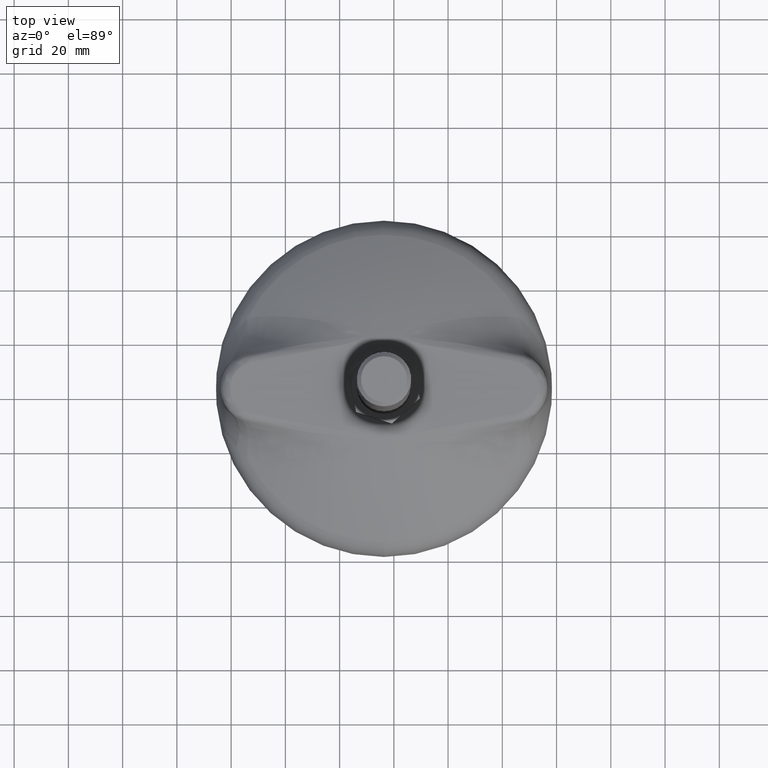
[diagram: clean part render]
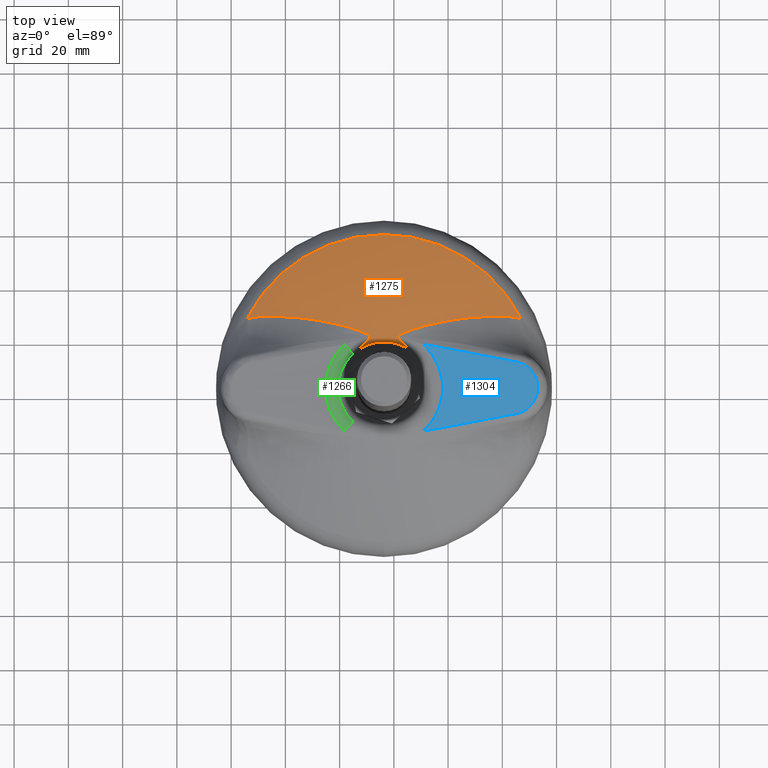
[diagram: same view with three faces highlighted in distinct colors, each labeled with its STEP entity id]
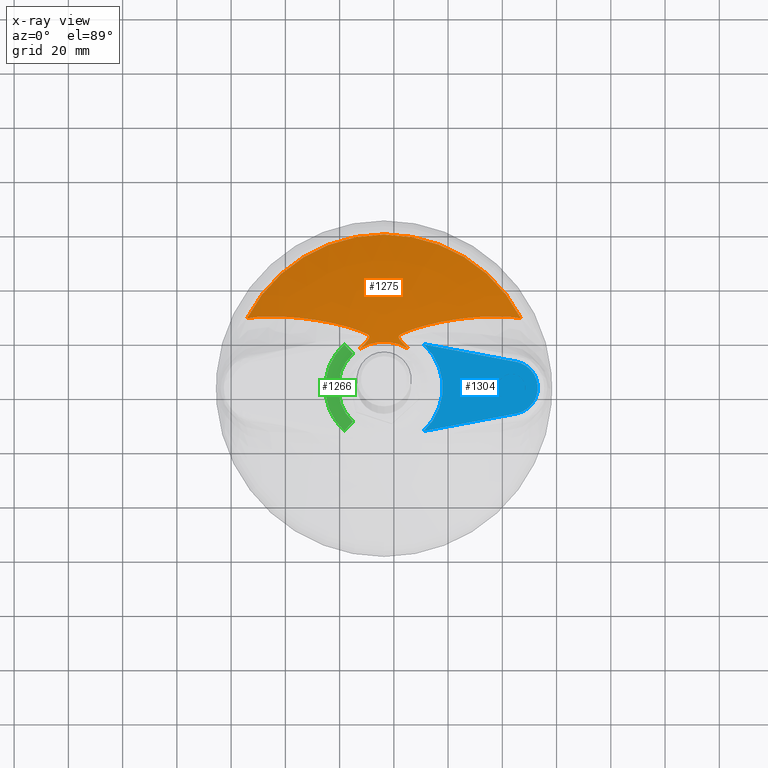
[diagram: x-ray of the same camera — body ghosted, the three highlighted faces saturated]
A machine part, top view with three faces highlighted in distinct colors.
The next image is the same camera in x-ray (body ghosted, the three faces saturated) — at least one of them is partly hidden behind the body in this view.
Their STEP definitions:

[orange] entity #1275 — the highlighted face is a freeform B-spline surface patch.
#20=(
BOUNDED_SURFACE()
B_SPLINE_SURFACE(2,2,((#3874,#3875,#3876,#3877,#3878),(#3879,#3880,#3881,
#3882,#3883),(#3884,#3885,#3886,#3887,#3888)),.UNSPECIFIED.,.F.,.F.,.F.)
B_SPLINE_SURFACE_WITH_KNOTS((3,3),(3,2,3),(-1.31152766641114,-1.07592567953575),
(-1.0983849025637,9.16156039920679E-13,1.09838490258155),.UNSPECIFIED.)
GEOMETRIC_REPRESENTATION_ITEM()
RATIONAL_B_SPLINE_SURFACE(((1.,0.85294633943252,1.,0.85294633943252,1.),
(0.9930694831446,0.847034980450331,0.9930694831446,0.847034980450331,0.9930694831446),
(1.,0.85294633943252,1.,0.85294633943252,1.)))
REPRESENTATION_ITEM('')
SURFACE()
);
#63=B_SPLINE_CURVE_WITH_KNOTS('',3,(#3890,#3891,#3892,#3893,#3894,#3895,
#3896,#3897,#3898,#3899,#3900,#3901,#3902,#3903,#3904,#3905,#3906,#3907,
#3908,#3909,#3910,#3911,#3912,#3913,#3914,#3915,#3916,#3917,#3918,#3919,
#3920,#3921,#3922,#3923,#3924,#3925,#3926,#3927,#3928,#3929,#3930,#3931,
#3932,#3933,#3934,#3935,#3936,#3937,#3938,#3939,#3940,#3941,#3942,#3943,
#3944,#3945,#3946,#3947,#3948,#3949,#3950,#3951,#3952,#3953,#3954,#3955,
#3956,#3957,#3958,#3959,#3960,#3961,#3962,#3963,#3964,#3965,#3966,#3967,
#3968,#3969,#3970,#3971,#3972,#3973,#3974,#3975,#3976,#3977,#3978,#3979,
#3980,#3981,#3982,#3983,#3984,#3985,#3986,#3987,#3988,#3989,#3990,#3991,
#3992,#3993,#3994,#3995,#3996,#3997,#3998,#3999,#4000,#4001,#4002,#4003,
#4004,#4005,#4006,#4007,#4008,#4009,#4010,#4011,#4012,#4013,#4014,#4015,
#4016,#4017,#4018,#4019,#4020,#4021,#4022,#4023,#4024,#4025,#4026,#4027,
#4028,#4029,#4030,#4031,#4032,#4033,#4034,#4035,#4036,#4037,#4038,#4039,
#4040,#4041,#4042,#4043,#4044,#4045,#4046,#4047,#4048,#4049,#4050,#4051,
#4052,#4053,#4054,#4055,#4056,#4057,#4058,#4059,#4060,#4061,#4062,#4063,
#4064,#4065,#4066,#4067,#4068,#4069,#4070,#4071,#4072,#4073,#4074,#4075,
#4076,#4077,#4078,#4079,#4080,#4081,#4082,#4083,#4084,#4085,#4086,#4087,
#4088,#4089,#4090,#4091,#4092,#4093,#4094,#4095,#4096,#4097,#4098,#4099,
#4100,#4101,#4102,#4103,#4104,#4105,#4106,#4107,#4108,#4109,#4110,#4111,
#4112,#4113,#4114,#4115,#4116,#4117,#4118,#4119,#4120,#4121,#4122,#4123,
#4124,#4125,#4126,#4127,#4128,#4129,#4130),.UNSPECIFIED.,.F.,.F.,(4,3,3,
3,3,3,3,3,3,3,3,3,3,3,3,3,3,3,3,3,3,3,3,3,3,3,3,3,3,3,3,3,3,3,3,3,3,3,3,
3,3,3,3,3,3,3,3,3,3,3,3,3,3,3,3,3,3,3,3,3,3,3,3,3,3,3,3,3,3,3,3,3,3,3,3,
3,3,3,3,3,4),(3.93083922660854E-15,0.0196057529346704,0.0280782004664921,
0.031250000000002,0.0446949786486336,0.0564903918303463,0.062500000000003,
0.0708687609769002,0.078125000000004,0.0834433874560295,0.0854182082675369,
0.085937500000005,0.0908075361945901,0.0927916881239207,0.093750000000005,
0.0971841127513683,0.097656250000005,0.10027814392872,0.101562500000005,
0.103515625000005,0.105468750000005,0.107959009577527,0.109375000000005,
0.111771957417621,0.111912412021614,0.113281250000006,0.115939984306104,
0.117187500000006,0.117977048234917,0.12000882757954,0.121093750000006,
0.122898898695867,0.123046875000006,0.124046466356851,0.125000000000006,
0.128021937631291,0.131114930700089,0.131949589370558,0.132812500000006,
0.137171362000535,0.139699595024447,0.140625000000006,0.146790452865691,
0.147372277595677,0.148437500000006,0.155006802598149,0.156250000000006,
0.162623920658647,0.171875000000006,0.17784326972361,0.187500000000006,
0.20300781884158,0.208328210900528,0.218750000000006,0.238941945510385,
0.250000000000005,0.2697034167111,0.281250000000005,0.300619755697817,0.312500000000005,
0.350384567700326,0.362874893564887,0.375000000000004,0.422008212302989,
0.470136826265884,0.488689230268933,0.500000000000001,0.558349640465282,
0.61566363097529,0.625000000000003,0.672894350636468,0.679430808654679,
0.687500000000002,0.733575988522938,0.743337011566233,0.750000000000002,
0.82629231197548,0.871509070605987,0.875000000000001,0.96094417406337,1.),
 .UNSPECIFIED.);
#64=B_SPLINE_CURVE_WITH_KNOTS('',3,(#4131,#4132,#4133,#4134,#4135,#4136),
 .UNSPECIFIED.,.F.,.F.,(4,2,4),(5.63741545224557E-15,0.500000000000003,
1.),.UNSPECIFIED.);
#65=B_SPLINE_CURVE_WITH_KNOTS('',3,(#4138,#4139,#4140,#4141,#4142,#4143,
#4144,#4145,#4146,#4147,#4148,#4149,#4150),.UNSPECIFIED.,.F.,.F.,(4,3,3,
3,4),(7.45651100131381E-10,0.499164467179616,0.5,0.937453456053034,1.),
 .UNSPECIFIED.);
#66=B_SPLINE_CURVE_WITH_KNOTS('',3,(#4151,#4152,#4153,#4154,#4155,#4156,
#4157,#4158,#4159,#4160,#4161,#4162,#4163,#4164,#4165,#4166,#4167,#4168,
#4169,#4170,#4171,#4172,#4173,#4174,#4175,#4176,#4177,#4178,#4179,#4180,
#4181,#4182,#4183,#4184,#4185,#4186,#4187,#4188,#4189,#4190,#4191,#4192,
#4193,#4194,#4195,#4196,#4197,#4198,#4199,#4200,#4201,#4202,#4203,#4204,
#4205,#4206,#4207,#4208,#4209,#4210,#4211,#4212,#4213,#4214,#4215,#4216,
#4217,#4218,#4219,#4220,#4221,#4222,#4223,#4224,#4225,#4226,#4227,#4228,
#4229,#4230,#4231,#4232,#4233,#4234,#4235,#4236,#4237,#4238,#4239,#4240,
#4241,#4242,#4243,#4244,#4245,#4246,#4247,#4248,#4249,#4250,#4251,#4252,
#4253,#4254,#4255,#4256,#4257,#4258,#4259,#4260,#4261,#4262,#4263,#4264,
#4265,#4266,#4267,#4268,#4269,#4270,#4271,#4272,#4273,#4274,#4275,#4276,
#4277,#4278,#4279,#4280,#4281,#4282,#4283,#4284,#4285,#4286,#4287,#4288,
#4289,#4290,#4291,#4292,#4293,#4294,#4295,#4296,#4297,#4298,#4299,#4300,
#4301,#4302,#4303,#4304,#4305,#4306,#4307,#4308,#4309,#4310,#4311,#4312,
#4313,#4314,#4315,#4316,#4317,#4318,#4319,#4320,#4321,#4322,#4323,#4324,
#4325,#4326,#4327,#4328,#4329,#4330,#4331,#4332,#4333,#4334,#4335,#4336,
#4337,#4338,#4339,#4340,#4341,#4342,#4343,#4344,#4345,#4346,#4347,#4348,
#4349,#4350,#4351,#4352,#4353,#4354,#4355,#4356,#4357,#4358,#4359,#4360,
#4361,#4362,#4363,#4364,#4365,#4366,#4367,#4368,#4369,#4370,#4371,#4372,
#4373,#4374,#4375,#4376,#4377,#4378,#4379,#4380,#4381,#4382,#4383,#4384,
#4385,#4386,#4387,#4388,#4389,#4390,#4391,#4392,#4393,#4394,#4395,#4396,
#4397),.UNSPECIFIED.,.F.,.F.,(4,3,3,3,3,3,3,3,3,3,3,3,3,3,3,3,3,3,3,3,3,
3,3,3,3,3,3,3,3,3,3,3,3,3,3,3,3,3,3,3,3,3,3,3,3,3,3,3,3,3,3,3,3,3,3,3,3,
3,3,3,3,3,3,3,3,3,3,3,3,3,3,3,3,3,3,3,3,3,3,3,3,3,4),(0.,0.0824637632666135,
0.125,0.128044523385398,0.206632244911203,0.25,0.256585549792283,0.299253119140413,
0.320978214991398,0.363217118094421,0.375000000000001,0.385228720022292,
0.442614360011147,0.500000000000001,0.512746708420802,0.559040951555956,
0.604253141122832,0.625000000000001,0.638527011786039,0.674976759992211,
0.687500000000001,0.70053496984502,0.731267354801784,0.750000000000001,
0.761771790258149,0.781250000000002,0.792054501203243,0.80768852932501,
0.812500000000002,0.822220905713107,0.828125000000002,0.837287404988327,
0.843750000000002,0.844830724660499,0.851562500000002,0.8523927417603,0.859375000000002,
0.859974308280214,0.863287053242455,0.866203298349907,0.867187500000002,
0.867637463615258,0.870050515801176,0.871093750000002,0.871571744435195,
0.873627766143436,0.875000000000002,0.875515154130315,0.877117144030171,
0.878675006473504,0.878906250000002,0.879549156588028,0.880859375000002,
0.881557760528427,0.881835937500002,0.882812500000002,0.883599920903537,
0.885481709014202,0.886718750000002,0.887602368208906,0.889532227455677,
0.890625000000002,0.891555289426754,0.893727408703184,0.896131418599974,
0.898437500000002,0.899229942128677,0.902739983927309,0.906250000000002,
0.906734669601081,0.912687947035024,0.914062500000002,0.914125226400928,
0.919650676558158,0.921875000000002,0.928724792520908,0.937500000000002,
0.943189950650793,0.956801478835071,0.968750000000001,0.97177878372109,
0.9912420092683,1.),.UNSPECIFIED.);
#256=FACE_OUTER_BOUND('',#339,.T.);
#339=EDGE_LOOP('',(#1022,#1023,#1024,#1025,#1026,#1027));
#474=CIRCLE('',#1465,16.9392939245695);
#493=CIRCLE('',#1488,56.7491782872209);
#590=VERTEX_POINT('',#2780);
#591=VERTEX_POINT('',#2782);
#610=VERTEX_POINT('',#3589);
#611=VERTEX_POINT('',#3596);
#614=VERTEX_POINT('',#3889);
#615=VERTEX_POINT('',#4137);
#734=EDGE_CURVE('',#591,#590,#474,.T.);
#762=EDGE_CURVE('',#610,#611,#493,.T.);
#766=EDGE_CURVE('',#590,#614,#63,.T.);
#767=EDGE_CURVE('',#614,#611,#64,.T.);
#768=EDGE_CURVE('',#610,#615,#65,.T.);
#769=EDGE_CURVE('',#615,#591,#66,.T.);
#1022=ORIENTED_EDGE('',*,*,#734,.T.);
#1023=ORIENTED_EDGE('',*,*,#766,.T.);
#1024=ORIENTED_EDGE('',*,*,#767,.T.);
#1025=ORIENTED_EDGE('',*,*,#762,.F.);
#1026=ORIENTED_EDGE('',*,*,#768,.T.);
#1027=ORIENTED_EDGE('',*,*,#769,.T.);
#1275=ADVANCED_FACE('',(#256),#20,.F.);
#1465=AXIS2_PLACEMENT_3D('',#2783,#1707,#1708);
#1488=AXIS2_PLACEMENT_3D('',#3597,#1755,#1756);
#1707=DIRECTION('center_axis',(0.,-1.171453E-15,-1.));
#1708=DIRECTION('ref_axis',(0.,1.,-1.171453E-15));
#1755=DIRECTION('center_axis',(0.,-1.171453E-15,-1.));
#1756=DIRECTION('ref_axis',(0.,1.,-1.171453E-15));
#2780=CARTESIAN_POINT('',(8.89716575086483,14.4145801279327,24.5657738747235));
#2782=CARTESIAN_POINT('',(-8.89716566282281,14.4145801822752,24.5657738747235));
#2783=CARTESIAN_POINT('Origin',(0.,1.403457E-14,24.5657738747235));
#3589=CARTESIAN_POINT('',(-50.5336448482202,25.8228575620742,8.80030893597424));
#3596=CARTESIAN_POINT('',(50.5336448489295,25.8228575612986,8.80030893582382));
#3597=CARTESIAN_POINT('Origin',(0.,-2.290244E-14,8.80030892666647));
#3874=CARTESIAN_POINT('Ctrl Pts',(-15.0839939759396,7.70797018655171,24.5657738747233));
#3875=CARTESIAN_POINT('Ctrl Pts',(-10.366757396018,16.9392939246156,24.5657738747233));
#3876=CARTESIAN_POINT('Ctrl Pts',(0.,16.9392939245694,24.5657738747233));
#3877=CARTESIAN_POINT('Ctrl Pts',(10.3667573961692,16.9392939245231,24.5657738747233));
#3878=CARTESIAN_POINT('Ctrl Pts',(15.0839939760773,7.70797018628234,24.5657738747233));
#3879=CARTESIAN_POINT('Ctrl Pts',(-33.6395538867243,17.1899219040638,19.0387703333837));
#3880=CARTESIAN_POINT('Ctrl Pts',(-23.1194135061447,37.7771491880136,19.0387703333836));
#3881=CARTESIAN_POINT('Ctrl Pts',(0.,37.7771491879104,19.0387703333836));
#3882=CARTESIAN_POINT('Ctrl Pts',(23.119413506482,37.7771491878071,19.0387703333836));
#3883=CARTESIAN_POINT('Ctrl Pts',(33.6395538870312,17.189921903463,19.0387703333837));
#3884=CARTESIAN_POINT('Ctrl Pts',(-50.5336448635786,25.8228575699224,8.80030892666634));
#3885=CARTESIAN_POINT('Ctrl Pts',(-34.7301939706997,56.7491782873759,8.8003089266663));
#3886=CARTESIAN_POINT('Ctrl Pts',(0.,56.7491782872209,8.8003089266663));
#3887=CARTESIAN_POINT('Ctrl Pts',(34.7301939712064,56.7491782870658,8.8003089266663));
#3888=CARTESIAN_POINT('Ctrl Pts',(50.5336448640397,25.82285756902,8.80030892666634));
#3889=CARTESIAN_POINT('',(45.7480636398669,26.4967497864431,10.8352334090555));
#3890=CARTESIAN_POINT('Ctrl Pts',(8.89716575086476,14.4145801279327,24.5657738747234));
#3891=CARTESIAN_POINT('Ctrl Pts',(8.66331336508114,14.6423893562114,24.5469347146778));
#3892=CARTESIAN_POINT('Ctrl Pts',(8.43060190889026,14.8712141181452,24.5252744752304));
#3893=CARTESIAN_POINT('Ctrl Pts',(8.19939101575548,15.1014307820489,24.5007374740006));
#3894=CARTESIAN_POINT('Ctrl Pts',(8.09947533450631,15.2009168161928,24.4901340324393));
#3895=CARTESIAN_POINT('Ctrl Pts',(7.99983963933514,15.3006622688776,24.4789936596645));
#3896=CARTESIAN_POINT('Ctrl Pts',(7.9005118165875,15.4006950169689,24.4673132225871));
#3897=CARTESIAN_POINT('Ctrl Pts',(7.86332681890269,15.4381439150046,24.4629404596122));
#3898=CARTESIAN_POINT('Ctrl Pts',(7.82618373251583,15.4756267823147,24.4584935797304));
#3899=CARTESIAN_POINT('Ctrl Pts',(7.78908871573618,15.5131496012642,24.4539708907276));
#3900=CARTESIAN_POINT('Ctrl Pts',(7.63184620929658,15.6722055233938,24.4347996106909));
#3901=CARTESIAN_POINT('Ctrl Pts',(7.47547684062984,15.8319049153204,24.4142825602115));
#3902=CARTESIAN_POINT('Ctrl Pts',(7.32048810523324,15.9926876617671,24.3922934503298));
#3903=CARTESIAN_POINT('Ctrl Pts',(7.18451494973105,16.1337439606571,24.3730021860346));
#3904=CARTESIAN_POINT('Ctrl Pts',(7.0496041288912,16.2756337261184,24.3525781013439));
#3905=CARTESIAN_POINT('Ctrl Pts',(6.91607906260828,16.4186290924443,24.330946278196));
#3906=CARTESIAN_POINT('Ctrl Pts',(6.84804979421166,16.4914833543898,24.3199251482778));
#3907=CARTESIAN_POINT('Ctrl Pts',(6.78038569341602,16.5646327547734,24.3085880933282));
#3908=CARTESIAN_POINT('Ctrl Pts',(6.71320718895832,16.6382006061447,24.2968964823216));
#3909=CARTESIAN_POINT('Ctrl Pts',(6.61965685577177,16.7406485106219,24.2806151715961));
#3910=CARTESIAN_POINT('Ctrl Pts',(6.52703907551244,16.8439271997845,24.2636421762519));
#3911=CARTESIAN_POINT('Ctrl Pts',(6.43572103636521,16.9482704896653,24.245894905883));
#3912=CARTESIAN_POINT('Ctrl Pts',(6.35654258677121,17.0387426460482,24.2305069128264));
#3913=CARTESIAN_POINT('Ctrl Pts',(6.27831741427829,17.1299166094787,24.2145634426746));
#3914=CARTESIAN_POINT('Ctrl Pts',(6.20167063590653,17.2222590937402,24.1978996570653));
#3915=CARTESIAN_POINT('Ctrl Pts',(6.14549315011269,17.2899405894009,24.1856861028986));
#3916=CARTESIAN_POINT('Ctrl Pts',(6.09012151687473,17.3582107774158,24.1730995273369));
#3917=CARTESIAN_POINT('Ctrl Pts',(6.03586415123123,17.4272931821397,24.160059483191));
#3918=CARTESIAN_POINT('Ctrl Pts',(6.01571733497606,17.4529448240491,24.1552174609097));
#3919=CARTESIAN_POINT('Ctrl Pts',(5.99572384691313,17.4787080697167,24.1503130495497));
#3920=CARTESIAN_POINT('Ctrl Pts',(5.97589837979397,17.5045929546713,24.1453426200928));
#3921=CARTESIAN_POINT('Ctrl Pts',(5.97068514672123,17.5113995503252,24.1440356139539));
#3922=CARTESIAN_POINT('Ctrl Pts',(5.96548351622082,17.5182152260662,24.1427238673101));
#3923=CARTESIAN_POINT('Ctrl Pts',(5.96029423094007,17.5250402107987,24.1414072643643));
#3924=CARTESIAN_POINT('Ctrl Pts',(5.91162793112985,17.5890464727836,24.1290598619337));
#3925=CARTESIAN_POINT('Ctrl Pts',(5.86400891081264,17.6538424266705,24.116296228614));
#3926=CARTESIAN_POINT('Ctrl Pts',(5.81804645252686,17.7195402735647,24.1030414095953));
#3927=CARTESIAN_POINT('Ctrl Pts',(5.79932041094509,17.7463069143985,24.097641126378));
#3928=CARTESIAN_POINT('Ctrl Pts',(5.78086887823864,17.7732229656445,24.092159439432));
#3929=CARTESIAN_POINT('Ctrl Pts',(5.76273093301183,17.8002947080129,24.0865918491338));
#3930=CARTESIAN_POINT('Ctrl Pts',(5.75397061175735,17.8133699024244,24.083902797038));
#3931=CARTESIAN_POINT('Ctrl Pts',(5.74527970503423,17.8264814749492,24.0811940155549));
#3932=CARTESIAN_POINT('Ctrl Pts',(5.73666594398647,17.8396342320258,24.0784636713549));
#3933=CARTESIAN_POINT('Ctrl Pts',(5.7057985120058,17.8867671664279,24.0686794768071));
#3934=CARTESIAN_POINT('Ctrl Pts',(5.67588627942841,17.9344154795211,24.0586248958021));
#3935=CARTESIAN_POINT('Ctrl Pts',(5.64732159024692,17.9827944258435,24.0482141469417));
#3936=CARTESIAN_POINT('Ctrl Pts',(5.64339438845282,17.9894457807239,24.0467828304186));
#3937=CARTESIAN_POINT('Ctrl Pts',(5.63949260293964,17.9961108901346,24.0453448016243));
#3938=CARTESIAN_POINT('Ctrl Pts',(5.63561719930937,18.0027902584049,24.043899857299));
#3939=CARTESIAN_POINT('Ctrl Pts',(5.61409613254566,18.0398824284598,24.0358757271027));
#3940=CARTESIAN_POINT('Ctrl Pts',(5.59337431253336,18.0774261099649,24.0276363703846));
#3941=CARTESIAN_POINT('Ctrl Pts',(5.57362787727089,18.1154564094472,24.0191597574109));
#3942=CARTESIAN_POINT('Ctrl Pts',(5.56395492531129,18.1340858610425,24.0150074195846));
#3943=CARTESIAN_POINT('Ctrl Pts',(5.55449651956085,18.1528580735037,24.010792650014));
#3944=CARTESIAN_POINT('Ctrl Pts',(5.54531024345347,18.1717639152029,24.0065136085699));
#3945=CARTESIAN_POINT('Ctrl Pts',(5.53134063960035,18.2005140981891,24.0000064545123));
#3946=CARTESIAN_POINT('Ctrl Pts',(5.51795869615511,18.2296683960594,23.9933287613907));
#3947=CARTESIAN_POINT('Ctrl Pts',(5.5053545616348,18.259140051117,23.9864894222015));
#3948=CARTESIAN_POINT('Ctrl Pts',(5.4927504271145,18.2886117061746,23.9796500830123));
#3949=CARTESIAN_POINT('Ctrl Pts',(5.48092418714851,18.3184008915647,23.972649042869));
#3950=CARTESIAN_POINT('Ctrl Pts',(5.47007306390732,18.3484250293418,23.9654937496998));
#3951=CARTESIAN_POINT('Ctrl Pts',(5.45623774175527,18.3867061924298,23.9563706585792));
#3952=CARTESIAN_POINT('Ctrl Pts',(5.443997814189,18.4254189751036,23.9469827788886));
#3953=CARTESIAN_POINT('Ctrl Pts',(5.43366850206576,18.4645704457204,23.9373054451444));
#3954=CARTESIAN_POINT('Ctrl Pts',(5.42779513562262,18.4868324251219,23.9318028011547));
#3955=CARTESIAN_POINT('Ctrl Pts',(5.42254759638077,18.5093466424286,23.9261763745635));
#3956=CARTESIAN_POINT('Ctrl Pts',(5.41802803773598,18.5319908164581,23.9204516370435));
#3957=CARTESIAN_POINT('Ctrl Pts',(5.4103774283491,18.5703223757994,23.9107609273856));
#3958=CARTESIAN_POINT('Ctrl Pts',(5.40479521515925,18.6090442392165,23.9007850891105));
#3959=CARTESIAN_POINT('Ctrl Pts',(5.40175253695905,18.6475807948945,23.8906446397785));
#3960=CARTESIAN_POINT('Ctrl Pts',(5.40157424503006,18.6498389228976,23.8900504394874));
#3961=CARTESIAN_POINT('Ctrl Pts',(5.40140466286917,18.6520964253537,23.8894556718434));
#3962=CARTESIAN_POINT('Ctrl Pts',(5.40124388154561,18.6543531904406,23.8888603602976));
#3963=CARTESIAN_POINT('Ctrl Pts',(5.3996769440751,18.6763470993003,23.8830585921123));
#3964=CARTESIAN_POINT('Ctrl Pts',(5.39892556080967,18.6983163342878,23.8771947803102));
#3965=CARTESIAN_POINT('Ctrl Pts',(5.39904271014663,18.7202633574416,23.8712644528584));
#3966=CARTESIAN_POINT('Ctrl Pts',(5.39927025275286,18.7628917066669,23.8597458032508));
#3967=CARTESIAN_POINT('Ctrl Pts',(5.40277107907118,18.8054235660468,23.8479799250222));
#3968=CARTESIAN_POINT('Ctrl Pts',(5.40992296000644,18.8479365221095,23.8359186308243));
#3969=CARTESIAN_POINT('Ctrl Pts',(5.41327872356927,18.8678842016353,23.8302593012079));
#3970=CARTESIAN_POINT('Ctrl Pts',(5.41744049746059,18.8877375153488,23.8245590202338));
#3971=CARTESIAN_POINT('Ctrl Pts',(5.42233099651933,18.9072926155989,23.8188791794556));
#3972=CARTESIAN_POINT('Ctrl Pts',(5.42542617593754,18.9196689688276,23.8152844284775));
#3973=CARTESIAN_POINT('Ctrl Pts',(5.42882122300016,18.9319566967346,23.8116888904315));
#3974=CARTESIAN_POINT('Ctrl Pts',(5.43250006614914,18.9440995897446,23.8081090605205));
#3975=CARTESIAN_POINT('Ctrl Pts',(5.44196699570669,18.9753474326387,23.7988969261011));
#3976=CARTESIAN_POINT('Ctrl Pts',(5.45335436898509,19.0059140086393,23.7897104278969));
#3977=CARTESIAN_POINT('Ctrl Pts',(5.46650945868402,19.0358271264843,23.7805535311625));
#3978=CARTESIAN_POINT('Ctrl Pts',(5.47353396742084,19.0518000284149,23.7756639635058));
#3979=CARTESIAN_POINT('Ctrl Pts',(5.48108747321162,19.0676087443035,23.7707747939198));
#3980=CARTESIAN_POINT('Ctrl Pts',(5.48910175162361,19.0832094960553,23.7659031696979));
#3981=CARTESIAN_POINT('Ctrl Pts',(5.50243631264915,19.1091668144293,23.7577975153719));
#3982=CARTESIAN_POINT('Ctrl Pts',(5.51703177138662,19.1345172452371,23.7497500941739));
#3983=CARTESIAN_POINT('Ctrl Pts',(5.532667353946,19.1592042544798,23.7417929809754));
#3984=CARTESIAN_POINT('Ctrl Pts',(5.53394907424167,19.161227961666,23.7411406999719));
#3985=CARTESIAN_POINT('Ctrl Pts',(5.53523780366911,19.1632471901904,23.7404890296712));
#3986=CARTESIAN_POINT('Ctrl Pts',(5.53653342989465,19.1652618971246,23.7398379901069));
#3987=CARTESIAN_POINT('Ctrl Pts',(5.54528548505841,19.1788713979817,23.7354401675963));
#3988=CARTESIAN_POINT('Ctrl Pts',(5.55436447281831,19.1922995584555,23.7310633512486));
#3989=CARTESIAN_POINT('Ctrl Pts',(5.56370197322141,19.2054751412853,23.7267321780483));
#3990=CARTESIAN_POINT('Ctrl Pts',(5.57260923388985,19.2180436388121,23.7226005703343));
#3991=CARTESIAN_POINT('Ctrl Pts',(5.58176579066857,19.2304266101675,23.7184973673784));
#3992=CARTESIAN_POINT('Ctrl Pts',(5.59113809942208,19.2426095390506,23.7144290834737));
#3993=CARTESIAN_POINT('Ctrl Pts',(5.62084080862121,19.2812196620552,23.7015358832026));
#3994=CARTESIAN_POINT('Ctrl Pts',(5.65283707022073,19.318056151701,23.6889191163788));
#3995=CARTESIAN_POINT('Ctrl Pts',(5.68661349427072,19.3535656172907,23.6764940337648));
#3996=CARTESIAN_POINT('Ctrl Pts',(5.72118411028671,19.3899100242064,23.6637767976424));
#3997=CARTESIAN_POINT('Ctrl Pts',(5.75765156145709,19.4248441108538,23.6512627870571));
#3998=CARTESIAN_POINT('Ctrl Pts',(5.79515504525545,19.4582877465462,23.6390409216461));
#3999=CARTESIAN_POINT('Ctrl Pts',(5.80527553606446,19.4673126683231,23.6357427940048));
#4000=CARTESIAN_POINT('Ctrl Pts',(5.81547117594404,19.4762290655445,23.6324659615442));
#4001=CARTESIAN_POINT('Ctrl Pts',(5.82572441843316,19.4850353935951,23.6292122147742));
#4002=CARTESIAN_POINT('Ctrl Pts',(5.83632471798459,19.4941398027987,23.6258483334983));
#4003=CARTESIAN_POINT('Ctrl Pts',(5.84699862527658,19.5031437689009,23.6225034599528));
#4004=CARTESIAN_POINT('Ctrl Pts',(5.85774292121244,19.5120519442858,23.6191765427134));
#4005=CARTESIAN_POINT('Ctrl Pts',(5.91201610047227,19.5570502394211,23.6023711255136));
#4006=CARTESIAN_POINT('Ctrl Pts',(5.96803200856708,19.5996359304953,23.5860195620649));
#4007=CARTESIAN_POINT('Ctrl Pts',(6.02532974885526,19.6404491318518,23.5699795799231));
#4008=CARTESIAN_POINT('Ctrl Pts',(6.05856366155414,19.6641216600183,23.5606760478203));
#4009=CARTESIAN_POINT('Ctrl Pts',(6.09222807471574,19.6871988254779,23.5514771507413));
#4010=CARTESIAN_POINT('Ctrl Pts',(6.12622825897027,19.709811466545,23.5423539858487));
#4011=CARTESIAN_POINT('Ctrl Pts',(6.13867329049288,19.7180883343638,23.5390146488079));
#4012=CARTESIAN_POINT('Ctrl Pts',(6.15116475884751,19.7263002609159,23.5356860825426));
#4013=CARTESIAN_POINT('Ctrl Pts',(6.16370034660843,19.7344492960847,23.5323678885982));
#4014=CARTESIAN_POINT('Ctrl Pts',(6.24721791732053,19.7887417340567,23.5102606286382));
#4015=CARTESIAN_POINT('Ctrl Pts',(6.33267911225755,19.8403410587657,23.4885878223826));
#4016=CARTESIAN_POINT('Ctrl Pts',(6.41944299189147,19.890072959775,23.4671684014665));
#4017=CARTESIAN_POINT('Ctrl Pts',(6.42763077175781,19.8947660862179,23.4651470821795));
#4018=CARTESIAN_POINT('Ctrl Pts',(6.43583012948929,19.8994426110623,23.4631280146927));
#4019=CARTESIAN_POINT('Ctrl Pts',(6.44404051318698,19.904103244217,23.4611110443235));
#4020=CARTESIAN_POINT('Ctrl Pts',(6.45907233327331,19.9126360730895,23.4574183136514));
#4021=CARTESIAN_POINT('Ctrl Pts',(6.47414440624557,19.9211159115507,23.4537322294548));
#4022=CARTESIAN_POINT('Ctrl Pts',(6.48925291722044,19.9295437491986,23.4500528370452));
#4023=CARTESIAN_POINT('Ctrl Pts',(6.582428182778,19.9815188255136,23.4273617614372));
#4024=CARTESIAN_POINT('Ctrl Pts',(6.67705536822911,20.0315936394134,23.4048977489456));
#4025=CARTESIAN_POINT('Ctrl Pts',(6.77224746882559,20.0800677189926,23.3826525434903));
#4026=CARTESIAN_POINT('Ctrl Pts',(6.79026194911035,20.0892411204139,23.3784427843549));
#4027=CARTESIAN_POINT('Ctrl Pts',(6.80829928226591,20.0983582890487,23.3742403531717));
#4028=CARTESIAN_POINT('Ctrl Pts',(6.82635769691887,20.1074212924678,23.3700448295755));
#4029=CARTESIAN_POINT('Ctrl Pts',(6.91894387997146,20.1538876578546,23.3485342195278));
#4030=CARTESIAN_POINT('Ctrl Pts',(7.01210462924057,20.1989479967453,23.3271983321701));
#4031=CARTESIAN_POINT('Ctrl Pts',(7.10569657727058,20.2429616276986,23.3059494584935));
#4032=CARTESIAN_POINT('Ctrl Pts',(7.24153550331121,20.306842810703,23.2751089402593));
#4033=CARTESIAN_POINT('Ctrl Pts',(7.37827208361773,20.36855464592,23.244442592695));
#4034=CARTESIAN_POINT('Ctrl Pts',(7.51563615334912,20.428634564284,23.2138257009611));
#4035=CARTESIAN_POINT('Ctrl Pts',(7.60425563095145,20.4673947072401,23.1940734254455));
#4036=CARTESIAN_POINT('Ctrl Pts',(7.69314450439849,20.5054592844236,23.1743454758218));
#4037=CARTESIAN_POINT('Ctrl Pts',(7.78224600063883,20.5429769147992,23.1546058149666));
#4038=CARTESIAN_POINT('Ctrl Pts',(7.92641326456346,20.6036808799223,23.1226668126337));
#4039=CARTESIAN_POINT('Ctrl Pts',(8.07113102728972,20.6629731351456,23.0906919219537));
#4040=CARTESIAN_POINT('Ctrl Pts',(8.21628378583578,20.7210683287233,23.0586344593867));
#4041=CARTESIAN_POINT('Ctrl Pts',(8.44938573851111,20.8143638554473,23.0071531289799));
#4042=CARTESIAN_POINT('Ctrl Pts',(8.68357888782383,20.9046514716924,22.9554403504227));
#4043=CARTESIAN_POINT('Ctrl Pts',(8.91853638476171,20.9927619996033,22.903305273086));
#4044=CARTESIAN_POINT('Ctrl Pts',(8.99914514178095,21.0229907866298,22.885418873052));
#4045=CARTESIAN_POINT('Ctrl Pts',(9.07984395976364,21.0529629013701,22.8674828832723));
#4046=CARTESIAN_POINT('Ctrl Pts',(9.16061994568237,21.0827105577805,22.8494899587686));
#4047=CARTESIAN_POINT('Ctrl Pts',(9.31884706131974,21.1409814141155,22.8142447245108));
#4048=CARTESIAN_POINT('Ctrl Pts',(9.47738487425443,21.1983425111565,22.7787933698974));
#4049=CARTESIAN_POINT('Ctrl Pts',(9.63619257693104,21.2548484838126,22.7431283946074));
#4050=CARTESIAN_POINT('Ctrl Pts',(9.94387837333958,21.3643273372027,22.6740284319415));
#4051=CARTESIAN_POINT('Ctrl Pts',(10.2525391533004,21.4707495504361,22.6040889129036));
#4052=CARTESIAN_POINT('Ctrl Pts',(10.5619377939515,21.5747293548828,22.5331888191747));
#4053=CARTESIAN_POINT('Ctrl Pts',(10.7313789716515,21.6316735627998,22.4943606092149));
#4054=CARTESIAN_POINT('Ctrl Pts',(10.9010760002923,21.6878819905952,22.4552399697555));
#4055=CARTESIAN_POINT('Ctrl Pts',(11.0709534614711,21.7433757083108,22.4158361170699));
#4056=CARTESIAN_POINT('Ctrl Pts',(11.3736438136095,21.8422552938675,22.3456257079772));
#4057=CARTESIAN_POINT('Ctrl Pts',(11.6769060814328,21.9389018841773,22.2745061316157));
#4058=CARTESIAN_POINT('Ctrl Pts',(11.9802693043279,22.0334540689251,22.2025307320782));
#4059=CARTESIAN_POINT('Ctrl Pts',(12.1580460204837,22.0888634779808,22.1603517558277));
#4060=CARTESIAN_POINT('Ctrl Pts',(12.3358820228151,22.1435582944963,22.1178748568228));
#4061=CARTESIAN_POINT('Ctrl Pts',(12.513756903146,22.1975634950813,22.075102154327));
#4062=CARTESIAN_POINT('Ctrl Pts',(12.8121475950573,22.2881589132729,22.0033496040574));
#4063=CARTESIAN_POINT('Ctrl Pts',(13.1106817731151,22.3768359601777,21.9307532734061));
#4064=CARTESIAN_POINT('Ctrl Pts',(13.4093298826975,22.4637333171961,21.8573055669414));
#4065=CARTESIAN_POINT('Ctrl Pts',(13.5925026886728,22.5170309347138,21.8122571569434));
#4066=CARTESIAN_POINT('Ctrl Pts',(13.775717531831,22.5696612749357,21.7668881465112));
#4067=CARTESIAN_POINT('Ctrl Pts',(13.9589715941206,22.6216401374972,21.7212000505972));
#4068=CARTESIAN_POINT('Ctrl Pts',(14.5433451770689,22.787394030061,21.5755066019842));
#4069=CARTESIAN_POINT('Ctrl Pts',(15.1281024057525,22.9465797816049,21.4265567208069));
#4070=CARTESIAN_POINT('Ctrl Pts',(15.7131472237937,23.0997267239376,21.2743837127591));
#4071=CARTESIAN_POINT('Ctrl Pts',(15.9060331630108,23.1502183972233,21.2242131400514));
#4072=CARTESIAN_POINT('Ctrl Pts',(16.0989505082349,23.2000532672602,21.1736921508959));
#4073=CARTESIAN_POINT('Ctrl Pts',(16.2918962237336,23.2492491652707,21.1228217388176));
#4074=CARTESIAN_POINT('Ctrl Pts',(16.4792001709636,23.2970065661597,21.0734387869607));
#4075=CARTESIAN_POINT('Ctrl Pts',(16.6665291740929,23.3441624674763,21.0237273874551));
#4076=CARTESIAN_POINT('Ctrl Pts',(16.8538840919209,23.3907243417992,20.973689261656));
#4077=CARTESIAN_POINT('Ctrl Pts',(17.5802463552462,23.5712415591206,20.7796948539865));
#4078=CARTESIAN_POINT('Ctrl Pts',(18.3069819551017,23.742898274357,20.5807761532798));
#4079=CARTESIAN_POINT('Ctrl Pts',(19.0340128664456,23.906148334345,20.3770353458633));
#4080=CARTESIAN_POINT('Ctrl Pts',(19.7783719551434,24.0732893237947,20.1684385456821));
#4081=CARTESIAN_POINT('Ctrl Pts',(20.5230408059671,24.2316181146457,19.9547870451177));
#4082=CARTESIAN_POINT('Ctrl Pts',(21.2679544004358,24.3815748828466,19.7361694626182));
#4083=CARTESIAN_POINT('Ctrl Pts',(21.5551003789716,24.4393795507475,19.6518977294695));
#4084=CARTESIAN_POINT('Ctrl Pts',(21.8422829014429,24.4959397254274,19.5668878607675));
#4085=CARTESIAN_POINT('Ctrl Pts',(22.1294988582166,24.5512788427413,19.4811441247319));
#4086=CARTESIAN_POINT('Ctrl Pts',(22.3046046585011,24.5850172204175,19.4288690851187));
#4087=CARTESIAN_POINT('Ctrl Pts',(22.4797237277292,24.6182999091222,19.3763215287258));
#4088=CARTESIAN_POINT('Ctrl Pts',(22.6548573882169,24.6511297564173,19.3235018382745));
#4089=CARTESIAN_POINT('Ctrl Pts',(23.5583313661866,24.8204913323086,19.0510172929608));
#4090=CARTESIAN_POINT('Ctrl Pts',(24.4621421391282,24.9778361691044,18.7712966466324));
#4091=CARTESIAN_POINT('Ctrl Pts',(25.3662319360616,25.1235262496094,18.4844408357407));
#4092=CARTESIAN_POINT('Ctrl Pts',(26.2542750093085,25.2666304714157,18.2026764393866));
#4093=CARTESIAN_POINT('Ctrl Pts',(27.1425875471551,25.3984897447202,17.9140277661845));
#4094=CARTESIAN_POINT('Ctrl Pts',(28.0311269214689,25.5194063028598,17.6185663231619));
#4095=CARTESIAN_POINT('Ctrl Pts',(28.1758687448486,25.5391034413411,17.5704360666558));
#4096=CARTESIAN_POINT('Ctrl Pts',(28.3206173301165,25.5585094482662,17.5221246875278));
#4097=CARTESIAN_POINT('Ctrl Pts',(28.4653730295535,25.5776250319174,17.4736321992507));
#4098=CARTESIAN_POINT('Ctrl Pts',(29.2079508140336,25.6756854731432,17.2248720837679));
#4099=CARTESIAN_POINT('Ctrl Pts',(29.9505333085203,25.7660892411269,16.9714075596297));
#4100=CARTESIAN_POINT('Ctrl Pts',(30.6934979549872,25.8489682567018,16.7131212368361));
#4101=CARTESIAN_POINT('Ctrl Pts',(30.7948952420598,25.8602793027583,16.6778711982995));
#4102=CARTESIAN_POINT('Ctrl Pts',(30.8962996557567,25.8714501278764,16.6425313063176));
#4103=CARTESIAN_POINT('Ctrl Pts',(30.9977121633427,25.8824810049999,16.6071012215712));
#4104=CARTESIAN_POINT('Ctrl Pts',(31.1229048787615,25.8960985112958,16.5633631401203));
#4105=CARTESIAN_POINT('Ctrl Pts',(31.2480901426636,25.9095003437883,16.519494376962));
#4106=CARTESIAN_POINT('Ctrl Pts',(31.3732666139501,25.9226868295922,16.475495580516));
#4107=CARTESIAN_POINT('Ctrl Pts',(32.0880383187601,25.9979831440001,16.2242575129935));
#4108=CARTESIAN_POINT('Ctrl Pts',(32.8016602345894,26.0661709854215,15.9690851358858));
#4109=CARTESIAN_POINT('Ctrl Pts',(33.5139680977623,26.1273457706657,15.7100849950985));
#4110=CARTESIAN_POINT('Ctrl Pts',(33.6648678112408,26.140305416407,15.6552167996786));
#4111=CARTESIAN_POINT('Ctrl Pts',(33.8157085702495,26.1529501697553,15.6001767162689));
#4112=CARTESIAN_POINT('Ctrl Pts',(33.9664888312885,26.1652806884949,15.5449655972314));
#4113=CARTESIAN_POINT('Ctrl Pts',(34.069413200065,26.1736976447279,15.5072778419695));
#4114=CARTESIAN_POINT('Ctrl Pts',(34.1723148209236,26.1819689779539,15.4695085532535));
#4115=CARTESIAN_POINT('Ctrl Pts',(34.2751951540549,26.1900949498785,15.4316572738749));
#4116=CARTESIAN_POINT('Ctrl Pts',(35.4531918667033,26.2831386631221,14.998253907843));
#4117=CARTESIAN_POINT('Ctrl Pts',(36.627816224707,26.3570916334626,14.5543145562576));
#4118=CARTESIAN_POINT('Ctrl Pts',(37.7991020811479,26.4121968819377,14.0999594223423));
#4119=CARTESIAN_POINT('Ctrl Pts',(38.4932971905455,26.4448565386587,13.8306732270389));
#4120=CARTESIAN_POINT('Ctrl Pts',(39.1863195783237,26.4708947417169,13.5577278141295));
#4121=CARTESIAN_POINT('Ctrl Pts',(39.8781759484444,26.4903545740071,13.281143984845));
#4122=CARTESIAN_POINT('Ctrl Pts',(39.931590253495,26.4918569572517,13.2597905166));
#4123=CARTESIAN_POINT('Ctrl Pts',(39.9849976328995,26.4933201165395,13.2384153515779));
#4124=CARTESIAN_POINT('Ctrl Pts',(40.0383980979482,26.4947440499819,13.2170184888871));
#4125=CARTESIAN_POINT('Ctrl Pts',(41.3530791886275,26.5298002684889,12.6902430993147));
#4126=CARTESIAN_POINT('Ctrl Pts',(42.6635495797359,26.5410923731093,12.1503247682165));
#4127=CARTESIAN_POINT('Ctrl Pts',(43.9698232141475,26.5285748266825,11.5972967150847));
#4128=CARTESIAN_POINT('Ctrl Pts',(44.5634364083771,26.5228864467576,11.3459827939658));
#4129=CARTESIAN_POINT('Ctrl Pts',(45.1561828824381,26.5122805492923,11.0919612417706));
#4130=CARTESIAN_POINT('Ctrl Pts',(45.7480636398669,26.496749786443,10.8352334090555));
#4131=CARTESIAN_POINT('Ctrl Pts',(45.7480636398669,26.496749786443,10.8352334090555));
#4132=CARTESIAN_POINT('Ctrl Pts',(46.5540569231184,26.4756008019461,10.4856344236912));
#4133=CARTESIAN_POINT('Ctrl Pts',(47.3559100982277,26.4081911295984,10.1416188853169));
#4134=CARTESIAN_POINT('Ctrl Pts',(48.9511961848648,26.1832589182205,9.46362774025698));
#4135=CARTESIAN_POINT('Ctrl Pts',(49.7446294992247,26.0257329839907,9.12965420528656));
#4136=CARTESIAN_POINT('Ctrl Pts',(50.5336448553809,25.8228575859647,8.80030892666645));
#4137=CARTESIAN_POINT('',(-45.7480642083207,26.4967497715271,10.8352331624891));
#4138=CARTESIAN_POINT('Ctrl Pts',(-50.533644851502,25.8228575875554,8.80030892814001));
#4139=CARTESIAN_POINT('Ctrl Pts',(-49.7459480866243,26.0253939429613,9.12910380960153));
#4140=CARTESIAN_POINT('Ctrl Pts',(-48.9538480319127,26.1827318772741,9.46251155460996));
#4141=CARTESIAN_POINT('Ctrl Pts',(-48.1575521187685,26.2951605763079,9.80092384259587));
#4142=CARTESIAN_POINT('Ctrl Pts',(-48.1562192286794,26.2953487665224,9.80149029832829));
#4143=CARTESIAN_POINT('Ctrl Pts',(-48.1548863268101,26.2955368309448,9.80205676808237));
#4144=CARTESIAN_POINT('Ctrl Pts',(-48.1535534131607,26.2957247695692,9.8026232518609));
#4145=CARTESIAN_POINT('Ctrl Pts',(-47.4556901236431,26.3941223414957,10.0992127821208));
#4146=CARTESIAN_POINT('Ctrl Pts',(-46.7546042103002,26.4580320328426,10.3996445513608));
#4147=CARTESIAN_POINT('Ctrl Pts',(-46.0503422724859,26.4866439048407,10.7042968792739));
#4148=CARTESIAN_POINT('Ctrl Pts',(-45.9496477880004,26.4907347942475,10.7478556852513));
#4149=CARTESIAN_POINT('Ctrl Pts',(-45.8488883849733,26.4941041773314,10.7915007513006));
#4150=CARTESIAN_POINT('Ctrl Pts',(-45.7480642083207,26.496749771527,10.835233162489));
#4151=CARTESIAN_POINT('Ctrl Pts',(-45.7480642083207,26.4967497715271,10.835233162489));
#4152=CARTESIAN_POINT('Ctrl Pts',(-44.4899855276942,26.5297613674468,11.3809238455941));
#4153=CARTESIAN_POINT('Ctrl Pts',(-43.2305925395658,26.5404575838884,11.9132628382661));
#4154=CARTESIAN_POINT('Ctrl Pts',(-41.9698894808468,26.5291710089136,12.4323957455006));
#4155=CARTESIAN_POINT('Ctrl Pts',(-41.3195970174432,26.5233491981446,12.700173486456));
#4156=CARTESIAN_POINT('Ctrl Pts',(-40.6689557981737,26.5116777306708,12.9644371554299));
#4157=CARTESIAN_POINT('Ctrl Pts',(-40.0179652729436,26.4941974985319,13.2252044066741));
#4158=CARTESIAN_POINT('Ctrl Pts',(-39.9713707448437,26.4929463541051,13.2438687751169));
#4159=CARTESIAN_POINT('Ctrl Pts',(-39.924774449939,26.4916654416869,13.2625152240891));
#4160=CARTESIAN_POINT('Ctrl Pts',(-39.8781763834994,26.4903547759456,13.2811437614695));
#4161=CARTESIAN_POINT('Ctrl Pts',(-38.6753490751056,26.4565228025125,13.7619987665947));
#4162=CARTESIAN_POINT('Ctrl Pts',(-37.4713296963,26.4028754090214,14.2309254648573));
#4163=CARTESIAN_POINT('Ctrl Pts',(-36.2661260948439,26.3294087779023,14.6879368355273));
#4164=CARTESIAN_POINT('Ctrl Pts',(-35.6010479680665,26.288867039273,14.9401334485758));
#4165=CARTESIAN_POINT('Ctrl Pts',(-34.9356090276647,26.242289023366,15.1887011345367));
#4166=CARTESIAN_POINT('Ctrl Pts',(-34.2698093646999,26.189668116827,15.4336390542267));
#4167=CARTESIAN_POINT('Ctrl Pts',(-34.1687052881075,26.1816774426632,15.4708337594365));
#4168=CARTESIAN_POINT('Ctrl Pts',(-34.0675993222486,26.1735478682938,15.5079424103458));
#4169=CARTESIAN_POINT('Ctrl Pts',(-33.9664893939273,26.1652792399936,15.5449657877853));
#4170=CARTESIAN_POINT('Ctrl Pts',(-33.311401358075,26.1117070580894,15.7848390822294));
#4171=CARTESIAN_POINT('Ctrl Pts',(-32.6559271114429,26.0522690755114,16.0212092934802));
#4172=CARTESIAN_POINT('Ctrl Pts',(-32.0000034255608,25.9869174176793,16.2540897482913));
#4173=CARTESIAN_POINT('Ctrl Pts',(-31.6660260004478,25.9536422381434,16.3726657599997));
#4174=CARTESIAN_POINT('Ctrl Pts',(-31.3319319465166,25.9188331907591,16.4903366333445));
#4175=CARTESIAN_POINT('Ctrl Pts',(-30.9977127232851,25.8824794959293,16.6071014457982));
#4176=CARTESIAN_POINT('Ctrl Pts',(-30.3479087600677,25.8117990163639,16.8341208169856));
#4177=CARTESIAN_POINT('Ctrl Pts',(-29.6981643246997,25.7353469008882,17.0575346070011));
#4178=CARTESIAN_POINT('Ctrl Pts',(-29.0479791627608,25.6529898890536,17.2774970009958));
#4179=CARTESIAN_POINT('Ctrl Pts',(-28.8666047799744,25.6300157378978,17.3388572807783));
#4180=CARTESIAN_POINT('Ctrl Pts',(-28.6851961358427,25.606581824112,17.3999488106091));
#4181=CARTESIAN_POINT('Ctrl Pts',(-28.5037424578475,25.5826846541857,17.4607745393197));
#4182=CARTESIAN_POINT('Ctrl Pts',(-28.346222516283,25.5619395204857,17.5135773556526));
#4183=CARTESIAN_POINT('Ctrl Pts',(-28.1886842978774,25.5408470217017,17.5661746891087));
#4184=CARTESIAN_POINT('Ctrl Pts',(-28.0311271948268,25.5194058796985,17.6185663562656));
#4185=CARTESIAN_POINT('Ctrl Pts',(-27.1471930199107,25.3991157893191,17.9124965198965));
#4186=CARTESIAN_POINT('Ctrl Pts',(-26.2626363843575,25.2678808526309,18.1999662983595));
#4187=CARTESIAN_POINT('Ctrl Pts',(-25.3774746724682,25.1253356448558,18.4808737657076));
#4188=CARTESIAN_POINT('Ctrl Pts',(-24.492312960579,24.9827904370808,18.7617812330557));
#4189=CARTESIAN_POINT('Ctrl Pts',(-23.606545932878,24.8289350989831,19.0361264788254));
#4190=CARTESIAN_POINT('Ctrl Pts',(-22.7202077127559,24.6633582127974,19.3037801815546));
#4191=CARTESIAN_POINT('Ctrl Pts',(-22.5233310227633,24.6265796687253,19.3632324017808));
#4192=CARTESIAN_POINT('Ctrl Pts',(-22.3264290017232,24.5892210302466,19.422354097143));
#4193=CARTESIAN_POINT('Ctrl Pts',(-22.1294991393845,24.5512774021899,19.481144448668));
#4194=CARTESIAN_POINT('Ctrl Pts',(-21.4142777169814,24.4134715087234,19.6946626949206));
#4195=CARTESIAN_POINT('Ctrl Pts',(-20.6986738166744,24.2679830167631,19.903807527155));
#4196=CARTESIAN_POINT('Ctrl Pts',(-19.982711499448,24.1143940741514,20.1084925905941));
#4197=CARTESIAN_POINT('Ctrl Pts',(-19.2834836512969,23.9643950263549,20.3083934694722));
#4198=CARTESIAN_POINT('Ctrl Pts',(-18.5839137695118,23.806669802181,20.5040406178949));
#4199=CARTESIAN_POINT('Ctrl Pts',(-17.8840416997073,23.6407868895229,20.6953343642672));
#4200=CARTESIAN_POINT('Ctrl Pts',(-17.5628861174759,23.5646669446139,20.78311477035));
#4201=CARTESIAN_POINT('Ctrl Pts',(-17.2416671647506,23.4868286498837,20.869978216881));
#4202=CARTESIAN_POINT('Ctrl Pts',(-16.92039012085,23.4072271899553,20.9559136721302));
#4203=CARTESIAN_POINT('Ctrl Pts',(-16.7109165622185,23.3553268086488,21.0119438366423));
#4204=CARTESIAN_POINT('Ctrl Pts',(-16.501419491312,23.3026711214313,21.0675808425777));
#4205=CARTESIAN_POINT('Ctrl Pts',(-16.2918962971154,23.2492481116163,21.122822015301));
#4206=CARTESIAN_POINT('Ctrl Pts',(-15.7273172317152,23.1052950134026,21.2716743167722));
#4207=CARTESIAN_POINT('Ctrl Pts',(-15.1625624661536,22.9557679946513,21.4176455803527));
#4208=CARTESIAN_POINT('Ctrl Pts',(-14.5976874804079,22.8001722060251,21.560701718213));
#4209=CARTESIAN_POINT('Ctrl Pts',(-14.4036102818254,22.7467133071008,21.6098523005127));
#4210=CARTESIAN_POINT('Ctrl Pts',(-14.2095190481107,22.6925376160364,21.6586586883738));
#4211=CARTESIAN_POINT('Ctrl Pts',(-14.015416545809,22.6376237449733,21.7071192439681));
#4212=CARTESIAN_POINT('Ctrl Pts',(-13.8133825463989,22.5804659604914,21.757560014923));
#4213=CARTESIAN_POINT('Ctrl Pts',(-13.6113582857845,22.5225098475875,21.8076219944308));
#4214=CARTESIAN_POINT('Ctrl Pts',(-13.4093315041979,22.463726741496,21.8573071202052));
#4215=CARTESIAN_POINT('Ctrl Pts',(-12.9330154944859,22.3251345493515,21.9744491182367));
#4216=CARTESIAN_POINT('Ctrl Pts',(-12.4566899779804,22.1819330919596,22.0894992686966));
#4217=CARTESIAN_POINT('Ctrl Pts',(-11.9802709880974,22.0334475526099,22.2025322855291));
#4218=CARTESIAN_POINT('Ctrl Pts',(-11.6898741342338,21.9429395451899,22.2714305309139));
#4219=CARTESIAN_POINT('Ctrl Pts',(-11.3993770495827,21.8504546664998,22.3395899560572));
#4220=CARTESIAN_POINT('Ctrl Pts',(-11.1090888643598,21.7558206993507,22.4069862933762));
#4221=CARTESIAN_POINT('Ctrl Pts',(-10.9266687312337,21.6963517241585,22.4493388569726));
#4222=CARTESIAN_POINT('Ctrl Pts',(-10.7442136871408,21.6359848518918,22.4914200536958));
#4223=CARTESIAN_POINT('Ctrl Pts',(-10.5619380433979,21.5747275819105,22.5331892773783));
#4224=CARTESIAN_POINT('Ctrl Pts',(-10.260335386385,21.4733681517182,22.6023027836336));
#4225=CARTESIAN_POINT('Ctrl Pts',(-9.95911566867576,21.3695791578675,22.6705751861569));
#4226=CARTESIAN_POINT('Ctrl Pts',(-9.6590322624884,21.2629690474138,22.7379978884928));
#4227=CARTESIAN_POINT('Ctrl Pts',(-9.49257694825809,21.2038327570698,22.7753970477671));
#4228=CARTESIAN_POINT('Ctrl Pts',(-9.32642363943374,21.1437663125309,22.8125585184353));
#4229=CARTESIAN_POINT('Ctrl Pts',(-9.16062120641411,21.0827059206439,22.8494910934761));
#4230=CARTESIAN_POINT('Ctrl Pts',(-8.9207063920487,20.9943520146255,22.9029322386003));
#4231=CARTESIAN_POINT('Ctrl Pts',(-8.68149185611576,20.9040320758013,22.955864775328));
#4232=CARTESIAN_POINT('Ctrl Pts',(-8.44332469064336,20.8108836369191,23.0084860839382));
#4233=CARTESIAN_POINT('Ctrl Pts',(-8.37002724461787,20.7822166178622,23.0246806232652));
#4234=CARTESIAN_POINT('Ctrl Pts',(-8.2968290784202,20.7532813488084,23.0408457822726));
#4235=CARTESIAN_POINT('Ctrl Pts',(-8.22374051428012,20.7240517580959,23.0569875749641));
#4236=CARTESIAN_POINT('Ctrl Pts',(-8.07607525999418,20.6649974450715,23.0895998167076));
#4237=CARTESIAN_POINT('Ctrl Pts',(-7.92886868372704,20.6047141635006,23.1221230054397));
#4238=CARTESIAN_POINT('Ctrl Pts',(-7.78224574664619,20.5429765655396,23.1546059383488));
#4239=CARTESIAN_POINT('Ctrl Pts',(-7.6931927642703,20.5054795863315,23.1743347891649));
#4240=CARTESIAN_POINT('Ctrl Pts',(-7.6043574148939,20.4674384532325,23.194050782183));
#4241=CARTESIAN_POINT('Ctrl Pts',(-7.51579708041403,20.4287051394403,23.2137897795894));
#4242=CARTESIAN_POINT('Ctrl Pts',(-7.37836268133825,20.3685959524491,23.2444221982997));
#4243=CARTESIAN_POINT('Ctrl Pts',(-7.24156997343939,20.306859252334,23.2751010509752));
#4244=CARTESIAN_POINT('Ctrl Pts',(-7.10569615567648,20.2429616651476,23.3059494890509));
#4245=CARTESIAN_POINT('Ctrl Pts',(-7.0098591502166,20.1978922506505,23.327708073427));
#4246=CARTESIAN_POINT('Ctrl Pts',(-6.91448462164479,20.1517300426593,23.349555579596));
#4247=CARTESIAN_POINT('Ctrl Pts',(-6.81972862372194,20.1040916550955,23.3715854378283));
#4248=CARTESIAN_POINT('Ctrl Pts',(-6.8038827996373,20.0961251988757,23.3752694395359));
#4249=CARTESIAN_POINT('Ctrl Pts',(-6.78805541242834,20.088117872164,23.3789583216414));
#4250=CARTESIAN_POINT('Ctrl Pts',(-6.77224695535206,20.0800679366938,23.3826525311981));
#4251=CARTESIAN_POINT('Ctrl Pts',(-6.67377693297586,20.0299253249222,23.4056635623168));
#4252=CARTESIAN_POINT('Ctrl Pts',(-6.57596215621646,19.9780987454782,23.4288962146842));
#4253=CARTESIAN_POINT('Ctrl Pts',(-6.4796198381683,19.9241610970127,23.4524007134697));
#4254=CARTESIAN_POINT('Ctrl Pts',(-6.46773776966579,19.9175088714184,23.4552995648815));
#4255=CARTESIAN_POINT('Ctrl Pts',(-6.45587709484458,19.9108234323541,23.4582029448399));
#4256=CARTESIAN_POINT('Ctrl Pts',(-6.44403959779234,19.9041041764134,23.4611108690949));
#4257=CARTESIAN_POINT('Ctrl Pts',(-6.34448731641734,19.8475958406496,23.4855662495164));
#4258=CARTESIAN_POINT('Ctrl Pts',(-6.24643238765166,19.7886808281216,23.5103601919001));
#4259=CARTESIAN_POINT('Ctrl Pts',(-6.15080013175932,19.7260339270388,23.5357895507267));
#4260=CARTESIAN_POINT('Ctrl Pts',(-6.14259172685019,19.7206567546026,23.5379722292789));
#4261=CARTESIAN_POINT('Ctrl Pts',(-6.13439970089735,19.7152504668684,23.5401601621539));
#4262=CARTESIAN_POINT('Ctrl Pts',(-6.12622563947523,19.7098149636471,23.5423532481679));
#4263=CARTESIAN_POINT('Ctrl Pts',(-6.08104258145437,19.6797695988354,23.5544757815697));
#4264=CARTESIAN_POINT('Ctrl Pts',(-6.03639089060757,19.6488644465991,23.5667480716003));
#4265=CARTESIAN_POINT('Ctrl Pts',(-5.99264054584826,19.6168906734523,23.5791985496553));
#4266=CARTESIAN_POINT('Ctrl Pts',(-5.95412664565132,19.5887438162179,23.5901588397251));
#4267=CARTESIAN_POINT('Ctrl Pts',(-5.91631144630353,19.5597684163095,23.6012573380631));
#4268=CARTESIAN_POINT('Ctrl Pts',(-5.8794259045157,19.5298580638314,23.6125061137568));
#4269=CARTESIAN_POINT('Ctrl Pts',(-5.8669774271914,19.519763638576,23.6163024556936));
#4270=CARTESIAN_POINT('Ctrl Pts',(-5.85463462762965,19.5095630792558,23.6201158395362));
#4271=CARTESIAN_POINT('Ctrl Pts',(-5.84240568897467,19.4992534810299,23.6239464787181));
#4272=CARTESIAN_POINT('Ctrl Pts',(-5.83681478446094,19.494540072869,23.6256977948785));
#4273=CARTESIAN_POINT('Ctrl Pts',(-5.8312507462247,19.4898058389574,23.6274519272592));
#4274=CARTESIAN_POINT('Ctrl Pts',(-5.82571268328934,19.4850492740534,23.6292093721257));
#4275=CARTESIAN_POINT('Ctrl Pts',(-5.79601331556528,19.4595409019318,23.6386341478921));
#4276=CARTESIAN_POINT('Ctrl Pts',(-5.76696686297738,19.4332593103411,23.64819761706));
#4277=CARTESIAN_POINT('Ctrl Pts',(-5.73879447573988,19.4060877123346,23.6579155299634));
#4278=CARTESIAN_POINT('Ctrl Pts',(-5.7266147151859,19.3943406227181,23.6621168726202));
#4279=CARTESIAN_POINT('Ctrl Pts',(-5.71459829776861,19.3824265494911,23.6663472450235));
#4280=CARTESIAN_POINT('Ctrl Pts',(-5.70276402135515,19.3703331880965,23.6706085739501));
#4281=CARTESIAN_POINT('Ctrl Pts',(-5.69734173144504,19.3647921892912,23.6725610516543));
#4282=CARTESIAN_POINT('Ctrl Pts',(-5.69195185886478,19.35920710179,23.6745222606857));
#4283=CARTESIAN_POINT('Ctrl Pts',(-5.68659929054245,19.3535793766846,23.6764914122231));
#4284=CARTESIAN_POINT('Ctrl Pts',(-5.66357601693236,19.3293725572472,23.6849614236076));
#4285=CARTESIAN_POINT('Ctrl Pts',(-5.64123166928447,19.304384966673,23.6935772605636));
#4286=CARTESIAN_POINT('Ctrl Pts',(-5.61986067846256,19.2785772305681,23.7023270245662));
#4287=CARTESIAN_POINT('Ctrl Pts',(-5.60559721177025,19.2613525830353,23.7081668084329));
#4288=CARTESIAN_POINT('Ctrl Pts',(-5.59176681318939,19.2437630282095,23.714066186438));
#4289=CARTESIAN_POINT('Ctrl Pts',(-5.57844697307172,19.2258055289962,23.7200201771041));
#4290=CARTESIAN_POINT('Ctrl Pts',(-5.57344653483089,19.2190640542501,23.7222553813069));
#4291=CARTESIAN_POINT('Ctrl Pts',(-5.56853217987385,19.21228917477,23.7244921310947));
#4292=CARTESIAN_POINT('Ctrl Pts',(-5.56370176084198,19.2054749962856,23.7267322343746));
#4293=CARTESIAN_POINT('Ctrl Pts',(-5.54868046518346,19.1842847457074,23.7336983492088));
#4294=CARTESIAN_POINT('Ctrl Pts',(-5.53442918003125,19.1625922950354,23.7407333473274));
#4295=CARTESIAN_POINT('Ctrl Pts',(-5.52104425136278,19.1404081660811,23.7478275516113));
#4296=CARTESIAN_POINT('Ctrl Pts',(-5.50802801594134,19.118835107887,23.7547263431832));
#4297=CARTESIAN_POINT('Ctrl Pts',(-5.49582942660531,19.0967958270872,23.7616815902245));
#4298=CARTESIAN_POINT('Ctrl Pts',(-5.48456802708051,19.0742653325893,23.7686910539814));
#4299=CARTESIAN_POINT('Ctrl Pts',(-5.48289642523237,19.0709209866083,23.769731513699));
#4300=CARTESIAN_POINT('Ctrl Pts',(-5.48124555528598,19.0675657727243,23.7707731731546));
#4301=CARTESIAN_POINT('Ctrl Pts',(-5.47961590209057,19.0641995666672,23.7718160286576));
#4302=CARTESIAN_POINT('Ctrl Pts',(-5.47508511676917,19.05484079203,23.7747153905701));
#4303=CARTESIAN_POINT('Ctrl Pts',(-5.47071290798184,19.0453730631712,23.7776309439156));
#4304=CARTESIAN_POINT('Ctrl Pts',(-5.46652105399045,19.0358217368564,23.7805540910112));
#4305=CARTESIAN_POINT('Ctrl Pts',(-5.45797821995807,19.0163565084243,23.7865113501479));
#4306=CARTESIAN_POINT('Ctrl Pts',(-5.45014994106167,18.9965111391087,23.792511895884));
#4307=CARTESIAN_POINT('Ctrl Pts',(-5.44311145304853,18.9764168792573,23.7985142693793));
#4308=CARTESIAN_POINT('Ctrl Pts',(-5.43935972881275,18.9657060388688,23.8017137136452));
#4309=CARTESIAN_POINT('Ctrl Pts',(-5.43583081441724,18.9549165210777,23.8049159647301));
#4310=CARTESIAN_POINT('Ctrl Pts',(-5.4325407338576,18.9440871205271,23.808109279509));
#4311=CARTESIAN_POINT('Ctrl Pts',(-5.43123024758738,18.9397736149825,23.8093812225811));
#4312=CARTESIAN_POINT('Ctrl Pts',(-5.42995681475326,18.9354485001665,23.810653242646));
#4313=CARTESIAN_POINT('Ctrl Pts',(-5.42872149108256,18.9311169742935,23.8119238497999));
#4314=CARTESIAN_POINT('Ctrl Pts',(-5.42438478856781,18.915910806395,23.8163844178034));
#4315=CARTESIAN_POINT('Ctrl Pts',(-5.4205279811951,18.900612888172,23.820830237834));
#4316=CARTESIAN_POINT('Ctrl Pts',(-5.41716190251898,18.8852781379522,23.8252456313064));
#4317=CARTESIAN_POINT('Ctrl Pts',(-5.41444776930935,18.8729134374097,23.8288058469787));
#4318=CARTESIAN_POINT('Ctrl Pts',(-5.41202828944502,18.8604529119729,23.8323676443514));
#4319=CARTESIAN_POINT('Ctrl Pts',(-5.40992278582061,18.847936504673,23.8359186490745));
#4320=CARTESIAN_POINT('Ctrl Pts',(-5.40489102749465,18.8180246413486,23.844404883614));
#4321=CARTESIAN_POINT('Ctrl Pts',(-5.40164363626386,18.7879957870452,23.8527758195926));
#4322=CARTESIAN_POINT('Ctrl Pts',(-5.40009395182258,18.757687535855,23.8610810484108));
#4323=CARTESIAN_POINT('Ctrl Pts',(-5.39907522757937,18.7377636407481,23.8665407005291));
#4324=CARTESIAN_POINT('Ctrl Pts',(-5.39879145202477,18.7177190772533,23.8719718294071));
#4325=CARTESIAN_POINT('Ctrl Pts',(-5.39922994238624,18.6975083893273,23.8773872988533));
#4326=CARTESIAN_POINT('Ctrl Pts',(-5.39954315599216,18.6830718976744,23.8812555679465));
#4327=CARTESIAN_POINT('Ctrl Pts',(-5.40022208839845,18.6686915791466,23.8850780608124));
#4328=CARTESIAN_POINT('Ctrl Pts',(-5.40124369977595,18.6543532303114,23.8888603637342));
#4329=CARTESIAN_POINT('Ctrl Pts',(-5.40347494189342,18.6230376747873,23.897121072029));
#4330=CARTESIAN_POINT('Ctrl Pts',(-5.40737860372321,18.5918305865381,23.905211355568));
#4331=CARTESIAN_POINT('Ctrl Pts',(-5.41267368632433,18.5608927871303,23.913108988933));
#4332=CARTESIAN_POINT('Ctrl Pts',(-5.4156719987122,18.5433744226012,23.9175809818625));
#4333=CARTESIAN_POINT('Ctrl Pts',(-5.4191175888555,18.5259423280907,23.9219911287386));
#4334=CARTESIAN_POINT('Ctrl Pts',(-5.42296638432807,18.5086272049407,23.9263343902406));
#4335=CARTESIAN_POINT('Ctrl Pts',(-5.42624290674114,18.4938866479299,23.9300318570866));
#4336=CARTESIAN_POINT('Ctrl Pts',(-5.42982156228217,18.4791866590815,23.9336919278561));
#4337=CARTESIAN_POINT('Ctrl Pts',(-5.43367456891634,18.4645723742222,23.9373044499114));
#4338=CARTESIAN_POINT('Ctrl Pts',(-5.44267089816787,18.4304496926767,23.9457392752112));
#4339=CARTESIAN_POINT('Ctrl Pts',(-5.45314647929821,18.3965353519665,23.9539854607302));
#4340=CARTESIAN_POINT('Ctrl Pts',(-5.46487662552823,18.3629452884316,23.9620281455691));
#4341=CARTESIAN_POINT('Ctrl Pts',(-5.47785905606681,18.3257692244613,23.970929449544));
#4342=CARTESIAN_POINT('Ctrl Pts',(-5.49237798989118,18.2889906713993,23.9795814073837));
#4343=CARTESIAN_POINT('Ctrl Pts',(-5.50806253239657,18.2527471808457,23.9879748495499));
#4344=CARTESIAN_POINT('Ctrl Pts',(-5.52310815753642,18.217980086272,23.9960263808217));
#4345=CARTESIAN_POINT('Ctrl Pts',(-5.53922465054218,18.1837051894577,24.0038402055484));
#4346=CARTESIAN_POINT('Ctrl Pts',(-5.55604403937798,18.1500264655153,24.0114166269855));
#4347=CARTESIAN_POINT('Ctrl Pts',(-5.56182371059509,18.1384533962855,24.0140201237794));
#4348=CARTESIAN_POINT('Ctrl Pts',(-5.56769666484858,18.1269338548495,24.0165992365616));
#4349=CARTESIAN_POINT('Ctrl Pts',(-5.57364988122268,18.1154690596679,24.0191546058782));
#4350=CARTESIAN_POINT('Ctrl Pts',(-5.60001904756715,18.0646869156554,24.0304733543237));
#4351=CARTESIAN_POINT('Ctrl Pts',(-5.62810967184433,18.0147865924802,24.0413667592555));
#4352=CARTESIAN_POINT('Ctrl Pts',(-5.65755259002315,17.9656155191441,24.0519014354993));
#4353=CARTESIAN_POINT('Ctrl Pts',(-5.68699529240776,17.9164448061947,24.0624360345319));
#4354=CARTESIAN_POINT('Ctrl Pts',(-5.71778952456436,17.868002720429,24.0726121267631));
#4355=CARTESIAN_POINT('Ctrl Pts',(-5.74952740361729,17.82010404687,24.0825087627018));
#4356=CARTESIAN_POINT('Ctrl Pts',(-5.75390982946979,17.8134901082084,24.0838753087497));
#4357=CARTESIAN_POINT('Ctrl Pts',(-5.75831041344115,17.8068866951258,24.0852364702265));
#4358=CARTESIAN_POINT('Ctrl Pts',(-5.76272825880385,17.800293030058,24.0865925171753));
#4359=CARTESIAN_POINT('Ctrl Pts',(-5.81699338920581,17.7193019438266,24.1032490677039));
#4360=CARTESIAN_POINT('Ctrl Pts',(-5.87400915887859,17.6397795841867,24.1191220042629));
#4361=CARTESIAN_POINT('Ctrl Pts',(-5.93291347172453,17.5612760290053,24.1343894357878));
#4362=CARTESIAN_POINT('Ctrl Pts',(-5.94651389582214,17.5431503334144,24.1379145349458));
#4363=CARTESIAN_POINT('Ctrl Pts',(-5.96021479064247,17.5250789116284,24.1414073706234));
#4364=CARTESIAN_POINT('Ctrl Pts',(-5.9740051167151,17.5070561379401,24.1448701729067));
#4365=CARTESIAN_POINT('Ctrl Pts',(-5.97463442496598,17.5062336860179,24.1450281945544));
#4366=CARTESIAN_POINT('Ctrl Pts',(-5.97526389242917,17.5054113831457,24.1451861436407));
#4367=CARTESIAN_POINT('Ctrl Pts',(-5.97589351780776,17.5045892288514,24.1453440203888));
#4368=CARTESIAN_POINT('Ctrl Pts',(-6.0313560279433,17.4321672102492,24.159251084872));
#4369=CARTESIAN_POINT('Ctrl Pts',(-6.0880477833573,17.3608253165914,24.1726157258571));
#4370=CARTESIAN_POINT('Ctrl Pts',(-6.14564929441743,17.2902875763508,24.1855333926989));
#4371=CARTESIAN_POINT('Ctrl Pts',(-6.168837340222,17.2618919262793,24.1907335245167));
#4372=CARTESIAN_POINT('Ctrl Pts',(-6.19217247578321,17.2336261268531,24.1958613782188));
#4373=CARTESIAN_POINT('Ctrl Pts',(-6.21563248432741,17.2054703507383,24.2009237969236));
#4374=CARTESIAN_POINT('Ctrl Pts',(-6.28787745915588,17.1187647839922,24.2165134891102));
#4375=CARTESIAN_POINT('Ctrl Pts',(-6.36139672866451,17.0331824310267,24.2314537809672));
#4376=CARTESIAN_POINT('Ctrl Pts',(-6.43571597221595,16.9482660302773,24.2458965317189));
#4377=CARTESIAN_POINT('Ctrl Pts',(-6.53092568548285,16.8394803944088,24.2643990095718));
#4378=CARTESIAN_POINT('Ctrl Pts',(-6.62748395319653,16.731931132323,24.2820461939858));
#4379=CARTESIAN_POINT('Ctrl Pts',(-6.72507609483246,16.6252162940679,24.2989566602195));
#4380=CARTESIAN_POINT('Ctrl Pts',(-6.78835601968168,16.5560211024071,24.309921611029));
#4381=CARTESIAN_POINT('Ctrl Pts',(-6.85205710629771,16.4871931953657,24.3205740132482));
#4382=CARTESIAN_POINT('Ctrl Pts',(-6.91607908294185,16.41862936472,24.3309462081666));
#4383=CARTESIAN_POINT('Ctrl Pts',(-7.06923277319109,16.2546106287881,24.3557586243244));
#4384=CARTESIAN_POINT('Ctrl Pts',(-7.22419590313209,16.0920627752185,24.3789794159999));
#4385=CARTESIAN_POINT('Ctrl Pts',(-7.38048169445439,15.9305689567628,24.4007237678464));
#4386=CARTESIAN_POINT('Ctrl Pts',(-7.51767305607897,15.7888058658225,24.4198114738511));
#4387=CARTESIAN_POINT('Ctrl Pts',(-7.65588303400171,15.6478541954073,24.4377617695544));
#4388=CARTESIAN_POINT('Ctrl Pts',(-7.7947631475902,15.5074071887076,24.4546628632425));
#4389=CARTESIAN_POINT('Ctrl Pts',(-7.8299673223507,15.4718058283638,24.4589470551291));
#4390=CARTESIAN_POINT('Ctrl Pts',(-7.8652181748943,15.4362364305474,24.4631635168808));
#4391=CARTESIAN_POINT('Ctrl Pts',(-7.900510510734,15.4006938569287,24.4673136581039));
#4392=CARTESIAN_POINT('Ctrl Pts',(-8.12730210623589,15.1722942118661,24.4939828237219));
#4393=CARTESIAN_POINT('Ctrl Pts',(-8.35585411629232,14.9452394974737,24.5178533410964));
#4394=CARTESIAN_POINT('Ctrl Pts',(-8.58584718532431,14.7191788242831,24.5389582947187));
#4395=CARTESIAN_POINT('Ctrl Pts',(-8.68933862162563,14.6174568730165,24.5484550242186));
#4396=CARTESIAN_POINT('Ctrl Pts',(-8.79312157153786,14.5159355889984,24.557392077681));
#4397=CARTESIAN_POINT('Ctrl Pts',(-8.89716566282276,14.4145801822752,24.5657738747234));

[blue] entity #1304 — the highlighted planar face has unit normal (0, 0, 1).
#80=B_SPLINE_CURVE_WITH_KNOTS('',3,(#6399,#6400,#6401,#6402),
 .UNSPECIFIED.,.F.,.F.,(4,4),(0.762632725607193,1.),.UNSPECIFIED.);
#81=B_SPLINE_CURVE_WITH_KNOTS('',3,(#6416,#6417,#6418,#6419),
 .UNSPECIFIED.,.F.,.F.,(4,4),(0.,0.2373672752823),.UNSPECIFIED.);
#84=B_SPLINE_CURVE_WITH_KNOTS('',3,(#6735,#6736,#6737,#6738,#6739,#6740,
#6741,#6742,#6743,#6744,#6745,#6746,#6747,#6748,#6749,#6750,#6751,#6752,
#6753,#6754,#6755,#6756,#6757,#6758,#6759,#6760,#6761,#6762,#6763,#6764,
#6765,#6766,#6767,#6768,#6769,#6770,#6771,#6772,#6773,#6774,#6775,#6776,
#6777,#6778,#6779,#6780,#6781,#6782,#6783,#6784,#6785,#6786,#6787,#6788,
#6789,#6790,#6791,#6792,#6793,#6794,#6795,#6796,#6797,#6798,#6799,#6800,
#6801,#6802,#6803,#6804,#6805,#6806,#6807,#6808,#6809,#6810,#6811,#6812,
#6813,#6814,#6815,#6816,#6817,#6818,#6819,#6820,#6821,#6822,#6823,#6824,
#6825,#6826,#6827,#6828,#6829,#6830,#6831,#6832,#6833,#6834,#6835,#6836,
#6837,#6838,#6839,#6840,#6841,#6842,#6843,#6844,#6845,#6846,#6847,#6848,
#6849,#6850,#6851,#6852,#6853,#6854,#6855,#6856,#6857,#6858,#6859,#6860,
#6861,#6862,#6863,#6864,#6865,#6866,#6867,#6868,#6869,#6870,#6871,#6872,
#6873,#6874,#6875,#6876,#6877,#6878,#6879,#6880,#6881,#6882,#6883,#6884,
#6885,#6886,#6887,#6888,#6889,#6890,#6891,#6892,#6893,#6894,#6895,#6896,
#6897,#6898,#6899,#6900,#6901,#6902,#6903,#6904,#6905,#6906,#6907,#6908,
#6909,#6910,#6911,#6912),.UNSPECIFIED.,.F.,.F.,(4,3,3,3,3,3,3,3,3,3,3,3,
3,3,3,3,3,3,3,3,3,3,3,3,3,3,3,3,3,3,3,3,3,3,3,3,3,3,3,3,3,3,3,3,3,3,3,3,
3,3,3,3,3,3,3,3,3,3,3,4),(0.,0.0195054778795395,0.0392102079872748,0.0590411374612745,
0.0788978908546759,0.0986800175117128,0.118240781278917,0.125,0.144539040566288,
0.164257509961111,0.184071779582106,0.203859242275761,0.223545125345985,
0.242983481107652,0.25,0.250032207868603,0.269362175256832,0.28889375224244,
0.30855341548734,0.328239407357941,0.347849496391564,0.367231283122382,
0.375,0.394418834799305,0.41402057111539,0.43372027129805,0.453392931303553,
0.472962365787976,0.492278121527411,0.5,0.50002406646405,0.519373684342652,
0.538924315319347,0.558602162523369,0.578304663395112,0.597930188341854,
0.617326195540184,0.625,0.644404001589197,0.6639899806707,0.683673024044764,
0.70332784116394,0.722878924067134,0.742175466951738,0.75,0.750015896916143,
0.76946691960257,0.789113349326386,0.808881760704637,0.828669646039051,
0.848379606788072,0.867863209719501,0.875,0.894510139017967,0.914194542968899,
0.933969206309236,0.953709308111926,0.97334424019201,0.992727167316159,
1.),.UNSPECIFIED.);
#199=PLANE('',#1532);
#285=FACE_OUTER_BOUND('',#372,.T.);
#372=EDGE_LOOP('',(#1166,#1167,#1168,#1169));
#457=CIRCLE('',#1443,21.662730693662);
#566=VERTEX_POINT('',#2051);
#567=VERTEX_POINT('',#2052);
#644=VERTEX_POINT('',#6226);
#646=VERTEX_POINT('',#6415);
#708=EDGE_CURVE('',#566,#567,#457,.F.);
#822=EDGE_CURVE('',#644,#566,#80,.F.);
#823=EDGE_CURVE('',#567,#646,#81,.F.);
#827=EDGE_CURVE('',#646,#644,#84,.T.);
#1166=ORIENTED_EDGE('',*,*,#822,.T.);
#1167=ORIENTED_EDGE('',*,*,#708,.T.);
#1168=ORIENTED_EDGE('',*,*,#823,.T.);
#1169=ORIENTED_EDGE('',*,*,#827,.T.);
#1304=ADVANCED_FACE('',(#285),#199,.T.);
#1443=AXIS2_PLACEMENT_3D('',#2053,#1662,#1663);
#1532=AXIS2_PLACEMENT_3D('',#6734,#1854,#1855);
#1662=DIRECTION('center_axis',(0.,0.,1.));
#1663=DIRECTION('ref_axis',(1.,0.,0.));
#1854=DIRECTION('center_axis',(0.,0.,1.));
#1855=DIRECTION('ref_axis',(1.,0.,0.));
#2051=CARTESIAN_POINT('',(14.6229159005994,15.9826228032236,24.));
#2052=CARTESIAN_POINT('',(14.6229158394217,-15.9826228591967,24.));
#2053=CARTESIAN_POINT('Origin',(0.,-1.474308E-14,24.0000000000001));
#6226=CARTESIAN_POINT('',(49.0165587381812,9.48716465824303,24.0000000000001));
#6399=CARTESIAN_POINT('Ctrl Pts',(14.6229159005986,15.9826228032237,24.0000000000001));
#6400=CARTESIAN_POINT('Ctrl Pts',(26.1255223464002,13.9965229059646,24.0000000000001));
#6401=CARTESIAN_POINT('Ctrl Pts',(37.6072687231057,11.9122840989011,24.0000000000001));
#6402=CARTESIAN_POINT('Ctrl Pts',(49.0165586871781,9.48716466908407,24.0000000000001));
#6415=CARTESIAN_POINT('',(49.0165589586173,-9.48716461138813,24.0000000000001));
#6416=CARTESIAN_POINT('Ctrl Pts',(49.0165589392229,-9.48716461551053,24.0000000000001));
#6417=CARTESIAN_POINT('Ctrl Pts',(37.6072688714424,-11.9122840834138,24.0000000000001));
#6418=CARTESIAN_POINT('Ctrl Pts',(26.1255223900272,-13.9965229261065,24.0000000000001));
#6419=CARTESIAN_POINT('Ctrl Pts',(14.6229158394209,-15.9826228591968,24.0000000000001));
#6734=CARTESIAN_POINT('Origin',(47.,-1.101166E-13,24.0000000000001));
#6735=CARTESIAN_POINT('Ctrl Pts',(49.0165589775386,-9.48716460736628,24.0000000000001));
#6736=CARTESIAN_POINT('Ctrl Pts',(49.1847560291611,-9.45141322236543,24.0000000000001));
#6737=CARTESIAN_POINT('Ctrl Pts',(49.3513969383093,-9.41116532837022,24.0000000000001));
#6738=CARTESIAN_POINT('Ctrl Pts',(49.5165251039808,-9.36655007393145,24.0000000000001));
#6739=CARTESIAN_POINT('Ctrl Pts',(49.6833400857945,-9.32147906604161,24.0000000000001));
#6740=CARTESIAN_POINT('Ctrl Pts',(49.8486116409769,-9.27195084758634,24.0000000000001));
#6741=CARTESIAN_POINT('Ctrl Pts',(50.0123741464757,-9.21804613180172,23.9999999999997));
#6742=CARTESIAN_POINT('Ctrl Pts',(50.1771854724506,-9.16379618210963,23.9999999999993));
#6743=CARTESIAN_POINT('Ctrl Pts',(50.3404687549869,-9.10511331006314,23.9999999999986));
#6744=CARTESIAN_POINT('Ctrl Pts',(50.50224271506,-9.04202968141617,23.9999999999955));
#6745=CARTESIAN_POINT('Ctrl Pts',(50.6642273378614,-8.97886390500382,23.9999999999925));
#6746=CARTESIAN_POINT('Ctrl Pts',(50.824699106175,-8.9112856916343,23.9999999999872));
#6747=CARTESIAN_POINT('Ctrl Pts',(50.983654515435,-8.83928031309845,23.9999999999741));
#6748=CARTESIAN_POINT('Ctrl Pts',(51.1420125297843,-8.76754554911346,23.9999999999611));
#6749=CARTESIAN_POINT('Ctrl Pts',(51.2988659542466,-8.69141660451747,23.9999999999405));
#6750=CARTESIAN_POINT('Ctrl Pts',(51.4541832990931,-8.61083563605295,23.9999999999006));
#6751=CARTESIAN_POINT('Ctrl Pts',(51.607762635843,-8.53115637226125,23.9999999998612));
#6752=CARTESIAN_POINT('Ctrl Pts',(51.7598404332241,-8.44712390856441,23.9999999998031));
#6753=CARTESIAN_POINT('Ctrl Pts',(51.9103533044081,-8.35864359879838,23.9999999997057));
#6754=CARTESIAN_POINT('Ctrl Pts',(51.9623630024331,-8.32806924222747,23.9999999996721));
#6755=CARTESIAN_POINT('Ctrl Pts',(52.0141855250507,-8.29696346698712,23.9999999996336));
#6756=CARTESIAN_POINT('Ctrl Pts',(52.0658172062086,-8.26532135836284,23.9999999995892));
#6757=CARTESIAN_POINT('Ctrl Pts',(52.2150701826663,-8.1738527331378,23.9999999994607));
#6758=CARTESIAN_POINT('Ctrl Pts',(52.3610334269304,-8.07893950734399,23.9999999993694));
#6759=CARTESIAN_POINT('Ctrl Pts',(52.5037721093923,-7.9807011384302,23.9999999993351));
#6760=CARTESIAN_POINT('Ctrl Pts',(52.6478215744637,-7.88156063742902,23.9999999993006));
#6761=CARTESIAN_POINT('Ctrl Pts',(52.7885873693265,-7.77903341044749,23.9999999993203));
#6762=CARTESIAN_POINT('Ctrl Pts',(52.9261181385624,-7.67319219635656,23.9999999993668));
#6763=CARTESIAN_POINT('Ctrl Pts',(53.0643170873884,-7.56683676323346,23.9999999994136));
#6764=CARTESIAN_POINT('Ctrl Pts',(53.1992498859044,-7.45713481350992,23.9999999994853));
#6765=CARTESIAN_POINT('Ctrl Pts',(53.3309416489035,-7.34411355099614,23.9999999995517));
#6766=CARTESIAN_POINT('Ctrl Pts',(53.4624552447741,-7.23124519610045,23.999999999618));
#6767=CARTESIAN_POINT('Ctrl Pts',(53.5907369335794,-7.11506623177102,23.9999999996788));
#6768=CARTESIAN_POINT('Ctrl Pts',(53.7157820204308,-6.99556137667277,23.99999999972));
#6769=CARTESIAN_POINT('Ctrl Pts',(53.8401851840084,-6.87667000387729,23.999999999761));
#6770=CARTESIAN_POINT('Ctrl Pts',(53.9613852367021,-6.75448653058234,23.9999999997843));
#6771=CARTESIAN_POINT('Ctrl Pts',(54.0793428624311,-6.62895801497581,23.9999999997824));
#6772=CARTESIAN_POINT('Ctrl Pts',(54.1958173068614,-6.50500787588937,23.9999999997805));
#6773=CARTESIAN_POINT('Ctrl Pts',(54.309130644268,-6.37779600638255,23.9999999997574));
#6774=CARTESIAN_POINT('Ctrl Pts',(54.4192064498567,-6.24723852123862,23.9999999996766));
#6775=CARTESIAN_POINT('Ctrl Pts',(54.4589396957635,-6.20011215559938,23.9999999996474));
#6776=CARTESIAN_POINT('Ctrl Pts',(54.4982507214243,-6.15254958261364,23.9999999996103));
#6777=CARTESIAN_POINT('Ctrl Pts',(54.5371345591839,-6.10454588879226,23.999999999561));
#6778=CARTESIAN_POINT('Ctrl Pts',(54.5373130473425,-6.10432553783379,23.9999999995607));
#6779=CARTESIAN_POINT('Ctrl Pts',(54.5374915247247,-6.10410517973526,23.9999999995605));
#6780=CARTESIAN_POINT('Ctrl Pts',(54.5376699913304,-6.10388481449665,23.9999999995603));
#6781=CARTESIAN_POINT('Ctrl Pts',(54.6447790245593,-5.97162977681158,23.9999999994246));
#6782=CARTESIAN_POINT('Ctrl Pts',(54.7479310501937,-5.83688199805473,23.9999999993277));
#6783=CARTESIAN_POINT('Ctrl Pts',(54.8472420033826,-5.69971329847008,23.9999999992908));
#6784=CARTESIAN_POINT('Ctrl Pts',(54.9475887597308,-5.56111394327485,23.9999999992535));
#6785=CARTESIAN_POINT('Ctrl Pts',(55.0440140984802,-5.42004253296906,23.9999999992736));
#6786=CARTESIAN_POINT('Ctrl Pts',(55.1365970653174,-5.2765382715776,23.9999999993228));
#6787=CARTESIAN_POINT('Ctrl Pts',(55.2297871826118,-5.13209292263096,23.9999999993724));
#6788=CARTESIAN_POINT('Ctrl Pts',(55.3190845651111,-4.98518231171432,23.9999999994494));
#6789=CARTESIAN_POINT('Ctrl Pts',(55.4045260013014,-4.83581710257209,23.9999999995216));
#6790=CARTESIAN_POINT('Ctrl Pts',(55.4900818624217,-4.68625186046718,23.999999999594));
#6791=CARTESIAN_POINT('Ctrl Pts',(55.5717716278501,-4.53422502130418,23.9999999996613));
#6792=CARTESIAN_POINT('Ctrl Pts',(55.6495856095623,-4.37972417738755,23.9999999997083));
#6793=CARTESIAN_POINT('Ctrl Pts',(55.7270995656518,-4.22581903890684,23.9999999997553));
#6794=CARTESIAN_POINT('Ctrl Pts',(55.8007677347018,-4.06945850768072,23.9999999997836));
#6795=CARTESIAN_POINT('Ctrl Pts',(55.8705317338146,-3.91061377178192,23.9999999997875));
#6796=CARTESIAN_POINT('Ctrl Pts',(55.939483534593,-3.75361831963355,23.9999999997913));
#6797=CARTESIAN_POINT('Ctrl Pts',(56.0046216600019,-3.59419574346596,23.9999999997743));
#6798=CARTESIAN_POINT('Ctrl Pts',(56.0658399563726,-3.43230839126979,23.9999999997049));
#6799=CARTESIAN_POINT('Ctrl Pts',(56.0903778185851,-3.36741979133078,23.9999999996771));
#6800=CARTESIAN_POINT('Ctrl Pts',(56.114285342266,-3.30213512110348,23.9999999996403));
#6801=CARTESIAN_POINT('Ctrl Pts',(56.1375533347163,-3.23645173986751,23.9999999995892));
#6802=CARTESIAN_POINT('Ctrl Pts',(56.1957144581841,-3.07226829112376,23.9999999994615));
#6803=CARTESIAN_POINT('Ctrl Pts',(56.2491984881328,-2.90750422806902,23.9999999993705));
#6804=CARTESIAN_POINT('Ctrl Pts',(56.2981316118752,-2.74221128839984,23.9999999993358));
#6805=CARTESIAN_POINT('Ctrl Pts',(56.3475256254005,-2.5753614927354,23.9999999993008));
#6806=CARTESIAN_POINT('Ctrl Pts',(56.3922827603385,-2.40797238198372,23.9999999993195));
#6807=CARTESIAN_POINT('Ctrl Pts',(56.4324872861216,-2.24006936681797,23.9999999993651));
#6808=CARTESIAN_POINT('Ctrl Pts',(56.4728927426149,-2.07132722044924,23.999999999411));
#6809=CARTESIAN_POINT('Ctrl Pts',(56.5087001181106,-1.9020655774106,23.9999999994819));
#6810=CARTESIAN_POINT('Ctrl Pts',(56.5399469316544,-1.73228889510319,23.9999999995479));
#6811=CARTESIAN_POINT('Ctrl Pts',(56.571150855237,-1.56274525144734,23.9999999996139));
#6812=CARTESIAN_POINT('Ctrl Pts',(56.5978068437832,-1.39268753460205,23.9999999996748));
#6813=CARTESIAN_POINT('Ctrl Pts',(56.6199025992561,-1.22210566420624,23.9999999997166));
#6814=CARTESIAN_POINT('Ctrl Pts',(56.6418824148474,-1.05241886353936,23.9999999997581));
#6815=CARTESIAN_POINT('Ctrl Pts',(56.659349830328,-0.882212963326778,23.9999999997822));
#6816=CARTESIAN_POINT('Ctrl Pts',(56.6722419889915,-0.711470229666416,23.9999999997816));
#6817=CARTESIAN_POINT('Ctrl Pts',(56.684967026493,-0.542940835508798,23.9999999997811));
#6818=CARTESIAN_POINT('Ctrl Pts',(56.6932347084875,-0.373888030106005,23.9999999997597));
#6819=CARTESIAN_POINT('Ctrl Pts',(56.6969339774776,-0.204293337255642,23.9999999996834));
#6820=CARTESIAN_POINT('Ctrl Pts',(56.6984128378424,-0.136494301822983,23.9999999996529));
#6821=CARTESIAN_POINT('Ctrl Pts',(56.6991610127687,-0.0686086807833766,
23.999999999613));
#6822=CARTESIAN_POINT('Ctrl Pts',(56.6991690649526,-0.000635449588406621,
23.9999999995585));
#6823=CARTESIAN_POINT('Ctrl Pts',(56.6991690900485,-0.000423600187934619,
23.9999999995583));
#6824=CARTESIAN_POINT('Ctrl Pts',(56.6991691079418,-0.000211751493409603,
23.9999999995581));
#6825=CARTESIAN_POINT('Ctrl Pts',(56.6991691186324,9.64951918859244E-8,
23.9999999995579));
#6826=CARTESIAN_POINT('Ctrl Pts',(56.6991777139535,0.17032747068792,23.9999999994213));
#6827=CARTESIAN_POINT('Ctrl Pts',(56.6945347393871,0.340105818644809,23.9999999993237));
#6828=CARTESIAN_POINT('Ctrl Pts',(56.685375096152,0.509351622942692,23.9999999992867));
#6829=CARTESIAN_POINT('Ctrl Pts',(56.676120298156,0.680355633716527,23.9999999992492));
#6830=CARTESIAN_POINT('Ctrl Pts',(56.6622544206838,0.850816391404744,23.9999999992695));
#6831=CARTESIAN_POINT('Ctrl Pts',(56.6438631470546,1.02075243026385,23.9999999993193));
#6832=CARTESIAN_POINT('Ctrl Pts',(56.6253522011525,1.19179424528824,23.9999999993694));
#6833=CARTESIAN_POINT('Ctrl Pts',(56.6022566775682,1.3623049246897,23.9999999994469));
#6834=CARTESIAN_POINT('Ctrl Pts',(56.57461144997,1.53229850565609,23.9999999995197));
#6835=CARTESIAN_POINT('Ctrl Pts',(56.5469315866596,1.70250506547207,23.9999999995926));
#6836=CARTESIAN_POINT('Ctrl Pts',(56.5146904912315,1.87219367370952,23.9999999996603));
#6837=CARTESIAN_POINT('Ctrl Pts',(56.4778724143104,2.04136697079977,23.9999999997076));
#6838=CARTESIAN_POINT('Ctrl Pts',(56.4411981823534,2.20987932280931,23.9999999997548));
#6839=CARTESIAN_POINT('Ctrl Pts',(56.3999825220792,2.37788082102685,23.9999999997833));
#6840=CARTESIAN_POINT('Ctrl Pts',(56.3541615582026,2.545356146412,23.9999999997871));
#6841=CARTESIAN_POINT('Ctrl Pts',(56.3088764640409,2.71087287146919,23.9999999997909));
#6842=CARTESIAN_POINT('Ctrl Pts',(56.2590929773237,2.8758760637942,23.9999999997738));
#6843=CARTESIAN_POINT('Ctrl Pts',(56.2047045967974,3.04032717544901,23.9999999997038));
#6844=CARTESIAN_POINT('Ctrl Pts',(56.1831864671753,3.10539034340592,23.9999999996761));
#6845=CARTESIAN_POINT('Ctrl Pts',(56.1609470513658,3.17036679764906,23.9999999996396));
#6846=CARTESIAN_POINT('Ctrl Pts',(56.1379778704008,3.23525288802377,23.9999999995892));
#6847=CARTESIAN_POINT('Ctrl Pts',(56.0798979406502,3.39932402214514,23.9999999994616));
#6848=CARTESIAN_POINT('Ctrl Pts',(56.0178239493406,3.56090678680061,23.9999999993706));
#6849=CARTESIAN_POINT('Ctrl Pts',(55.9518858963124,3.72004102935694,23.9999999993359));
#6850=CARTESIAN_POINT('Ctrl Pts',(55.8853294532329,3.88066768832374,23.9999999993008));
#6851=CARTESIAN_POINT('Ctrl Pts',(55.8148359852396,4.03880011684518,23.9999999993194));
#6852=CARTESIAN_POINT('Ctrl Pts',(55.7404863248398,4.19447220385236,23.9999999993649));
#6853=CARTESIAN_POINT('Ctrl Pts',(55.6657682020231,4.3509157713627,23.9999999994106));
#6854=CARTESIAN_POINT('Ctrl Pts',(55.5871554066645,4.50487498728442,23.9999999994814));
#6855=CARTESIAN_POINT('Ctrl Pts',(55.5046792492844,4.65637056138758,23.9999999995474));
#6856=CARTESIAN_POINT('Ctrl Pts',(55.4223213659434,4.80764888490568,23.9999999996134));
#6857=CARTESIAN_POINT('Ctrl Pts',(55.3361110016084,4.95647104697392,23.9999999996743));
#6858=CARTESIAN_POINT('Ctrl Pts',(55.2460316227245,5.10283766070315,23.9999999997161));
#6859=CARTESIAN_POINT('Ctrl Pts',(55.1564276648882,5.2484317805532,23.9999999997577));
#6860=CARTESIAN_POINT('Ctrl Pts',(55.0629952319619,5.39159660304157,23.9999999997819));
#6861=CARTESIAN_POINT('Ctrl Pts',(54.965673717318,5.53230683479642,23.9999999997815));
#6862=CARTESIAN_POINT('Ctrl Pts',(54.8696192537254,5.67118512787124,23.9999999997812));
#6863=CARTESIAN_POINT('Ctrl Pts',(54.7697761001148,5.80767267511242,23.99999999976));
#6864=CARTESIAN_POINT('Ctrl Pts',(54.6660457821985,5.94171439553852,23.9999999996844));
#6865=CARTESIAN_POINT('Ctrl Pts',(54.6239842945271,5.9960668190577,23.9999999996537));
#6866=CARTESIAN_POINT('Ctrl Pts',(54.5812832276918,6.05001671232206,23.9999999996134));
#6867=CARTESIAN_POINT('Ctrl Pts',(54.5379342133593,6.10355873084309,23.9999999995581));
#6868=CARTESIAN_POINT('Ctrl Pts',(54.5378461422065,6.10366751087806,23.999999999558));
#6869=CARTESIAN_POINT('Ctrl Pts',(54.5377580688027,6.10377628869719,23.9999999995579));
#6870=CARTESIAN_POINT('Ctrl Pts',(54.5376699931477,6.10388506430049,23.9999999995578));
#6871=CARTESIAN_POINT('Ctrl Pts',(54.4299030811652,6.23697985504955,23.9999999994203));
#6872=CARTESIAN_POINT('Ctrl Pts',(54.3188492544088,6.36668281341927,23.9999999993223));
#6873=CARTESIAN_POINT('Ctrl Pts',(54.2046019643975,6.49309070891855,23.9999999992856));
#6874=CARTESIAN_POINT('Ctrl Pts',(54.0892069339907,6.62076851154612,23.9999999992484));
#6875=CARTESIAN_POINT('Ctrl Pts',(53.9705536355977,6.74508498163319,23.9999999992696));
#6876=CARTESIAN_POINT('Ctrl Pts',(53.8486959917387,6.86610728788215,23.9999999993202));
#6877=CARTESIAN_POINT('Ctrl Pts',(53.7260817525485,6.98788100297982,23.9999999993711));
#6878=CARTESIAN_POINT('Ctrl Pts',(53.6002229107973,7.10631979562479,23.9999999994494));
#6879=CARTESIAN_POINT('Ctrl Pts',(53.4711367558137,7.2214552378179,23.9999999995224));
#6880=CARTESIAN_POINT('Ctrl Pts',(53.3419234374442,7.33670410048325,23.9999999995956));
#6881=CARTESIAN_POINT('Ctrl Pts',(53.2094760775469,7.44864336672926,23.9999999996631));
#6882=CARTESIAN_POINT('Ctrl Pts',(53.0737797988892,7.55726387818383,23.99999999971));
#6883=CARTESIAN_POINT('Ctrl Pts',(52.9386178914427,7.66545664265194,23.9999999997567));
#6884=CARTESIAN_POINT('Ctrl Pts',(52.800232225492,7.7703569898153,23.9999999997845));
#6885=CARTESIAN_POINT('Ctrl Pts',(52.6585817509011,7.87191158103315,23.9999999997872));
#6886=CARTESIAN_POINT('Ctrl Pts',(52.5185580523702,7.97229987486831,23.9999999997898));
#6887=CARTESIAN_POINT('Ctrl Pts',(52.3753437198802,8.06941902383166,23.9999999997712));
#6888=CARTESIAN_POINT('Ctrl Pts',(52.2288789948112,8.1631708596337,23.9999999996976));
#6889=CARTESIAN_POINT('Ctrl Pts',(52.1752293679949,8.19751189978351,23.9999999996706));
#6890=CARTESIAN_POINT('Ctrl Pts',(52.1211434560754,8.23140066410646,23.9999999996358));
#6891=CARTESIAN_POINT('Ctrl Pts',(52.0666177905884,8.26483064773716,23.9999999995888));
#6892=CARTESIAN_POINT('Ctrl Pts',(51.917558721751,8.35621957782603,23.9999999994604));
#6893=CARTESIAN_POINT('Ctrl Pts',(51.7669147804441,8.44313178532312,23.999999999369));
#6894=CARTESIAN_POINT('Ctrl Pts',(51.6147601469471,8.52567734595331,23.9999999993388));
#6895=CARTESIAN_POINT('Ctrl Pts',(51.4612464653683,8.6089602051018,23.9999999993084));
#6896=CARTESIAN_POINT('Ctrl Pts',(51.3061946029824,8.68779830522966,23.9999999993369));
#6897=CARTESIAN_POINT('Ctrl Pts',(51.14964436086,8.76226580042025,23.999999999398));
#6898=CARTESIAN_POINT('Ctrl Pts',(50.9923762849997,8.8370747532777,23.9999999994594));
#6899=CARTESIAN_POINT('Ctrl Pts',(50.8335956610949,8.90747316110012,23.9999999995513));
#6900=CARTESIAN_POINT('Ctrl Pts',(50.6733121875385,8.97349357781146,23.9999999996388));
#6901=CARTESIAN_POINT('Ctrl Pts',(50.5133088524205,9.03939860610488,23.9999999997262));
#6902=CARTESIAN_POINT('Ctrl Pts',(50.3518075109372,9.10094113618886,23.9999999998082));
#6903=CARTESIAN_POINT('Ctrl Pts',(50.1887933882165,9.15810797341257,23.999999999867));
#6904=CARTESIAN_POINT('Ctrl Pts',(50.0266477589939,9.21497024177067,23.9999999999255));
#6905=CARTESIAN_POINT('Ctrl Pts',(49.8630050319616,9.2675035064511,23.9999999999613));
#6906=CARTESIAN_POINT('Ctrl Pts',(49.6978324540279,9.31564677407379,23.9999999999794));
#6907=CARTESIAN_POINT('Ctrl Pts',(49.5347797870801,9.363172145898,23.9999999999973));
#6908=CARTESIAN_POINT('Ctrl Pts',(49.3702359091186,9.40641962023084,23.9999999999994));
#6909=CARTESIAN_POINT('Ctrl Pts',(49.2041572488551,9.44528130741301,23.9999999999999));
#6910=CARTESIAN_POINT('Ctrl Pts',(49.1418414644168,9.45986293106961,24.0000000000001));
#6911=CARTESIAN_POINT('Ctrl Pts',(49.0793095055959,9.47382657292113,24.0000000000001));
#6912=CARTESIAN_POINT('Ctrl Pts',(49.0165587887663,9.48716464749084,24.0000000000001));

[green] entity #1266 — the highlighted toroidal blend (fillet) surface has major radius 21.6627 mm and minor (blend) radius 20 mm.
#90=TOROIDAL_SURFACE('',#1448,21.662730693662,20.);
#247=FACE_OUTER_BOUND('',#330,.T.);
#330=EDGE_LOOP('',(#958,#959,#960,#961));
#461=CIRCLE('',#1449,16.9392939245695);
#462=CIRCLE('',#1450,20.);
#463=CIRCLE('',#1451,21.662730693662);
#464=CIRCLE('',#1452,20.);
#574=VERTEX_POINT('',#2402);
#575=VERTEX_POINT('',#2403);
#576=VERTEX_POINT('',#2405);
#577=VERTEX_POINT('',#2407);
#716=EDGE_CURVE('',#574,#575,#461,.T.);
#717=EDGE_CURVE('',#576,#575,#462,.T.);
#718=EDGE_CURVE('',#577,#576,#463,.F.);
#719=EDGE_CURVE('',#577,#574,#464,.F.);
#958=ORIENTED_EDGE('',*,*,#716,.T.);
#959=ORIENTED_EDGE('',*,*,#717,.F.);
#960=ORIENTED_EDGE('',*,*,#718,.F.);
#961=ORIENTED_EDGE('',*,*,#719,.T.);
#1266=ADVANCED_FACE('',(#247),#90,.F.);
#1448=AXIS2_PLACEMENT_3D('',#2401,#1672,#1673);
#1449=AXIS2_PLACEMENT_3D('',#2404,#1674,#1675);
#1450=AXIS2_PLACEMENT_3D('',#2406,#1676,#1677);
#1451=AXIS2_PLACEMENT_3D('',#2408,#1678,#1679);
#1452=AXIS2_PLACEMENT_3D('',#2409,#1680,#1681);
#1672=DIRECTION('center_axis',(0.,0.,1.));
#1673=DIRECTION('ref_axis',(-1.,1.91416381600098E-9,0.));
#1674=DIRECTION('center_axis',(0.,-1.171453E-15,-1.));
#1675=DIRECTION('ref_axis',(0.,1.,-1.171453E-15));
#1676=DIRECTION('center_axis',(-0.737793544369783,-0.675026433472255,0.));
#1677=DIRECTION('ref_axis',(0.675026433472255,-0.737793544369783,0.));
#1678=DIRECTION('center_axis',(0.,0.,1.));
#1679=DIRECTION('ref_axis',(1.,0.,0.));
#1680=DIRECTION('center_axis',(-0.737793541785554,0.675026436296778,5.820781E-17));
#1681=DIRECTION('ref_axis',(-0.675026436296778,-0.737793541785554,6.16297582203915E-33));
#2401=CARTESIAN_POINT('Origin',(0.,-1.474308E-14,44.));
#2402=CARTESIAN_POINT('',(-11.4344712112857,-12.4977016599547,24.5657738747235));
#2403=CARTESIAN_POINT('',(-11.4344711634404,12.4977017037296,24.5657738747235));
#2404=CARTESIAN_POINT('Origin',(0.,1.403457E-14,24.5657738747235));
#2405=CARTESIAN_POINT('',(-14.6229158394115,15.9826228591984,24.));
#2406=CARTESIAN_POINT('Origin',(-14.6229158394127,15.9826228592049,44.));
#2407=CARTESIAN_POINT('',(-14.6229159005995,-15.9826228032236,24.));
#2408=CARTESIAN_POINT('Origin',(0.,-1.474308E-14,24.0000000000001));
#2409=CARTESIAN_POINT('Origin',(-14.6229159005994,-15.9826228032236,44.));